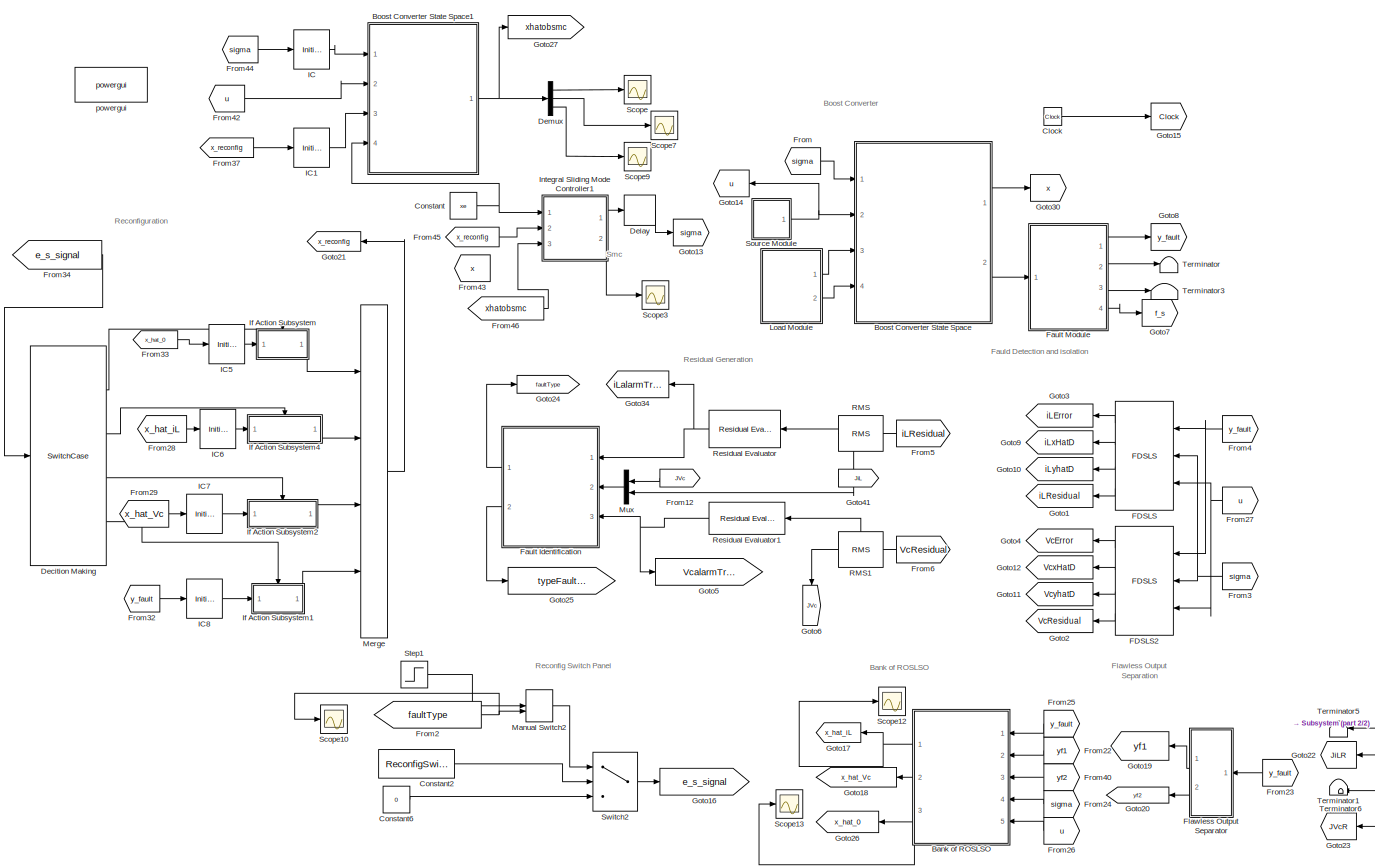
[diagram: root canvas - part 1/2, left side, full height]
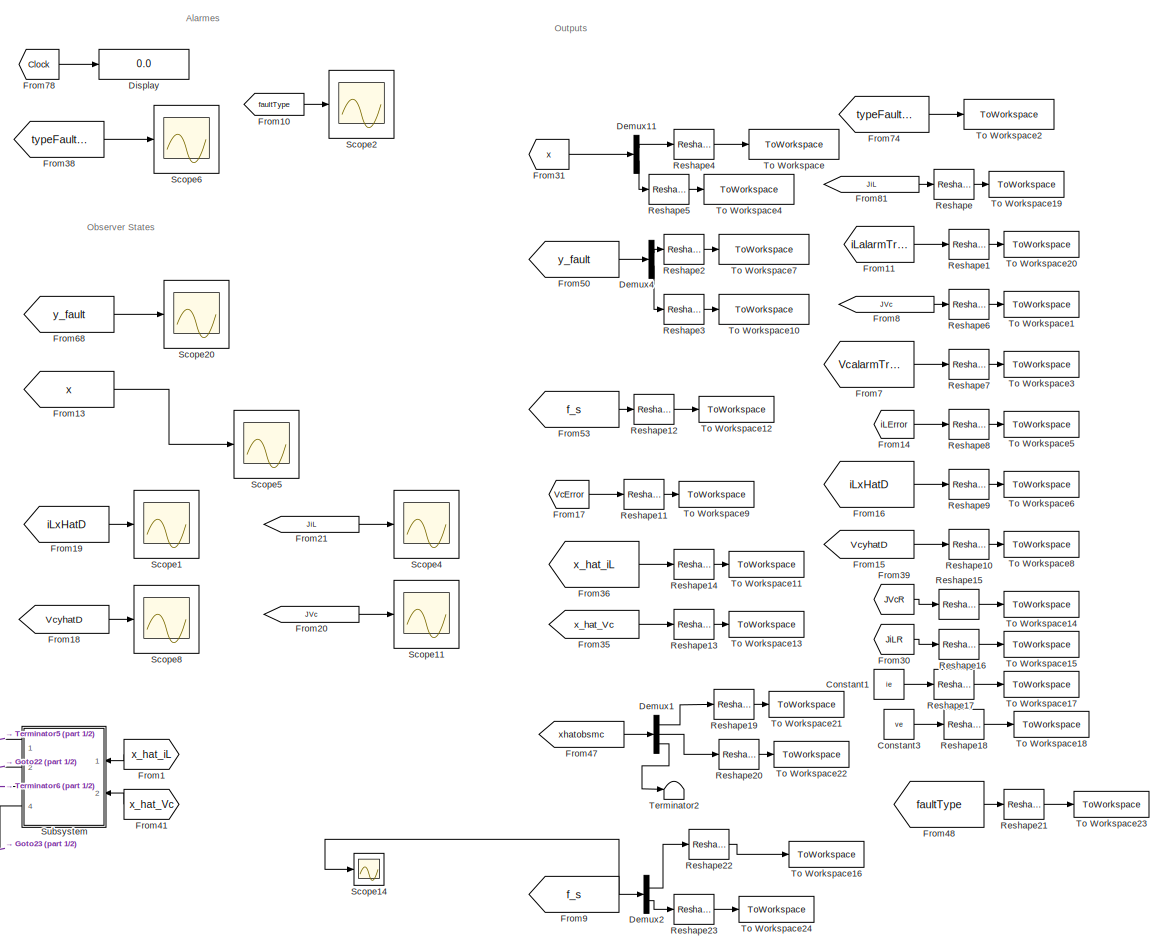
[diagram: root canvas - part 2/2, right side, full height]
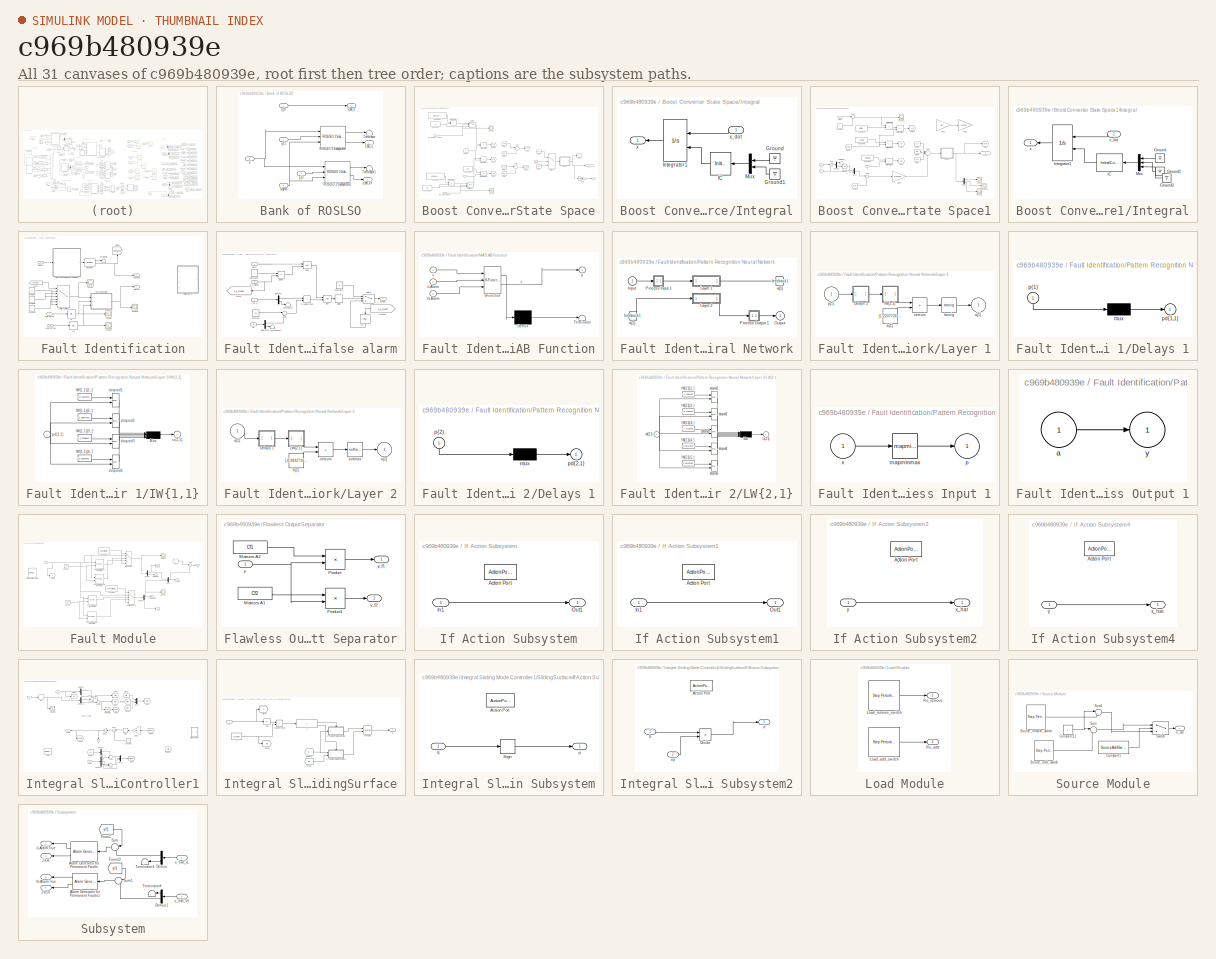
[diagram: thumbnail index - all 31 canvases of the model, root first then tree order]
MODEL slx_c969b480939e
KIND model
CONFIG AbsTol = auto
CONFIG EnableMultiTasking = on
CONFIG FixedStep = 0.0005
CONFIG InitFcn = kp=0.01;\nki=0.01;\n\nk=2;\nem=100000000;\nGE=1/em;\nGU=k*ki/GE;\nGCE=k*kp/GU;\n
CONFIG MaxStep = auto
CONFIG MinStep = auto
CONFIG RelTol = auto
CONFIG SampleTimeConstraint = Unconstrained
CONFIG Solver = ode45
CONFIG SolverName = ode45
CONFIG StartTime = 0.0
CONFIG StopTime = 1
WORKSPACE source: mxarray member
WORKSPACE time = 0.8
BLOCK [SubSystem] Bank of ROSLSO
  Ports = [5, 3]
  RequestExecContextInheritance = off
BLOCK [Reference] Bank of ROSLSO/ROSLSO 2 Subsystems  REF=PhdLibrary/ROSLSO
 2 Subsystems
  Ports = [3, 2]
  SourceBlock = PhdLibrary/ROSLSO\n 2 Subsystems
  SourceProductName = Phd Diego
  SourceType = ROSLSO
BLOCK [Reference] Bank of ROSLSO/ROSLSO 2 Subsystems1  REF=PhdLibrary/ROSLSO
 2 Subsystems
  Ports = [3, 2]
  SourceBlock = PhdLibrary/ROSLSO\n 2 Subsystems
  SourceProductName = Phd Diego
  SourceType = ROSLSO
BLOCK [Terminator] Bank of ROSLSO/Terminator
BLOCK [Terminator] Bank of ROSLSO/Terminator1
BLOCK [Inport] Bank of ROSLSO/sigma
  Port = 4
BLOCK [Inport] Bank of ROSLSO/u
  Port = 5
BLOCK [Outport] Bank of ROSLSO/x_hat_0
  Port = 3
BLOCK [Outport] Bank of ROSLSO/x_hat_Vc
  Port = 2
BLOCK [Outport] Bank of ROSLSO/x_hat_iL
BLOCK [Inport] Bank of ROSLSO/y_f0
BLOCK [Inport] Bank of ROSLSO/y_f1
  Port = 2
BLOCK [Inport] Bank of ROSLSO/y_f2
  Port = 3
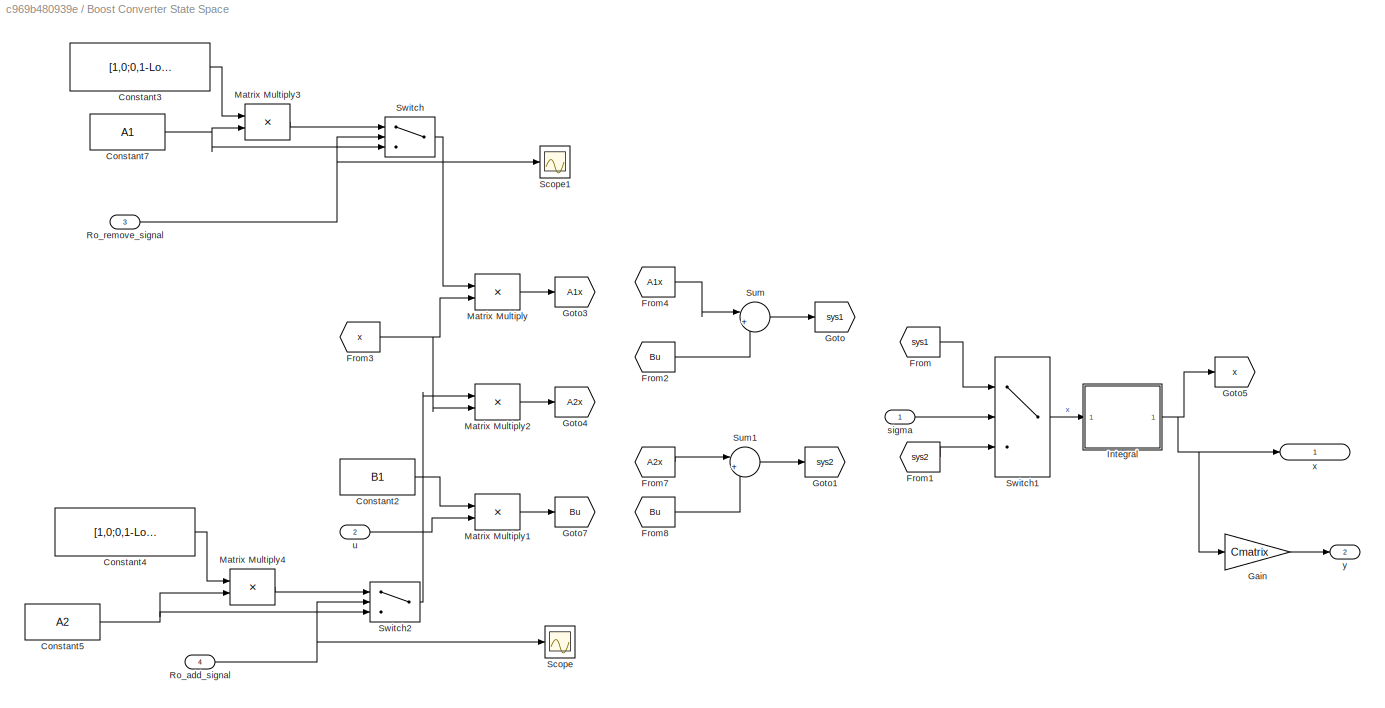
BLOCK [SubSystem] Boost Converter State Space
  AncestorBlock = PhdLibrary/Boost Converter \nState Space
  Ports = [4, 2]
  RequestExecContextInheritance = off
BLOCK [Constant] Boost Converter State Space/Constant2
  Value = B1
  VectorParams1D = off
BLOCK [Constant] Boost Converter State Space/Constant3
  Value = [1,0;0,1-LoadRemoveFactor]
  VectorParams1D = off
BLOCK [Constant] Boost Converter State Space/Constant4
  Value = [1,0;0,1-LoadRemoveFactor]
  VectorParams1D = off
BLOCK [Constant] Boost Converter State Space/Constant5
  Value = A2
  VectorParams1D = off
BLOCK [Constant] Boost Converter State Space/Constant7
  Value = A1
  VectorParams1D = off
BLOCK [From] Boost Converter State Space/From
  GotoTag = sys1
BLOCK [From] Boost Converter State Space/From1
  GotoTag = sys2
BLOCK [From] Boost Converter State Space/From2
  GotoTag = Bu
BLOCK [From] Boost Converter State Space/From3
  GotoTag = x
BLOCK [From] Boost Converter State Space/From4
  GotoTag = A1x
BLOCK [From] Boost Converter State Space/From7
  GotoTag = A2x
BLOCK [From] Boost Converter State Space/From8
  GotoTag = Bu
BLOCK [Gain] Boost Converter State Space/Gain
  Gain = Cmatrix
  Multiplication = Matrix(K*u)
BLOCK [Goto] Boost Converter State Space/Goto
  GotoTag = sys1
BLOCK [Goto] Boost Converter State Space/Goto1
  GotoTag = sys2
BLOCK [Goto] Boost Converter State Space/Goto3
  GotoTag = A1x
BLOCK [Goto] Boost Converter State Space/Goto4
  GotoTag = A2x
BLOCK [Goto] Boost Converter State Space/Goto5
  GotoTag = x
BLOCK [Goto] Boost Converter State Space/Goto7
  GotoTag = Bu
BLOCK [SubSystem] Boost Converter State Space/Integral
  Ports = [1, 1]
  RequestExecContextInheritance = off
BLOCK [Ground] Boost Converter State Space/Integral/Ground
  NameLocation = top
BLOCK [Ground] Boost Converter State Space/Integral/Ground1
  NameLocation = top
BLOCK [InitialCondition] Boost Converter State Space/Integral/IC
  NameLocation = top
  Value = [0;0]
BLOCK [Integrator] Boost Converter State Space/Integral/Integrator1
  InitialCondition = [-x_e; 0; 0]
  InitialConditionSource = external
  Ports = [2, 1]
BLOCK [Mux] Boost Converter State Space/Integral/Mux
  DisplayOption = bar
  Inputs = 2
  NameLocation = top
  Ports = [2, 1]
BLOCK [Outport] Boost Converter State Space/Integral/x
BLOCK [Inport] Boost Converter State Space/Integral/x_dot
BLOCK [Product] Boost Converter State Space/Matrix Multiply
  Multiplication = Matrix(*)
  Ports = [2, 1]
BLOCK [Product] Boost Converter State Space/Matrix Multiply1
  Multiplication = Matrix(*)
  Ports = [2, 1]
BLOCK [Product] Boost Converter State Space/Matrix Multiply2
  Multiplication = Matrix(*)
  Ports = [2, 1]
BLOCK [Product] Boost Converter State Space/Matrix Multiply3
  Multiplication = Matrix(*)
  Ports = [2, 1]
BLOCK [Product] Boost Converter State Space/Matrix Multiply4
  Multiplication = Matrix(*)
  Ports = [2, 1]
BLOCK [Inport] Boost Converter State Space/Ro_add_signal
  Port = 4
BLOCK [Inport] Boost Converter State Space/Ro_remove_signal
  Port = 3
BLOCK [Scope] Boost Converter State Space/Scope
  Floating = off
  NumInputPorts = 1
  Ports = [1]
  ScopeSpecificationString = Simulink.scopes.TimeScopeBlockCfg('CurrentConfiguration', extmgr.ConfigurationSet(extmgr.Configuration('Core','General UI',true),extmgr.Configuration('Core','Source UI',true),extmgr.Configuration('Sources','WiredSimulink',true,'DataLoggingVariableName','ScopeData12'),extmgr.Configuration('Visuals','Time Domain',true,'SerializedDisplays',{struct('MinYLimReal','-1.00000','MaxYLimReal','1.00000','YLa...<+1373ch>
BLOCK [Scope] Boost Converter State Space/Scope1
  Floating = off
  NumInputPorts = 1
  Ports = [1]
  ScopeSpecificationString = Simulink.scopes.TimeScopeBlockCfg('CurrentConfiguration', extmgr.ConfigurationSet(extmgr.Configuration('Core','General UI',true),extmgr.Configuration('Core','Source UI',true),extmgr.Configuration('Sources','WiredSimulink',true,'DataLoggingVariableName','ScopeData13'),extmgr.Configuration('Visuals','Time Domain',true,'SerializedDisplays',{struct('MinYLimReal','-1.00000','MaxYLimReal','1.00000','YLa...<+1376ch>
BLOCK [Sum] Boost Converter State Space/Sum
  Inputs = |++
  Ports = [2, 1]
BLOCK [Sum] Boost Converter State Space/Sum1
  Inputs = |++
  Ports = [2, 1]
BLOCK [Switch] Boost Converter State Space/Switch
  Criteria = u2 > Threshold
  InputSameDT = off
  SaturateOnIntegerOverflow = off
BLOCK [Switch] Boost Converter State Space/Switch1
  Criteria = u2 ~= 0
  InputSameDT = off
  SaturateOnIntegerOverflow = off
BLOCK [Switch] Boost Converter State Space/Switch2
  Criteria = u2 > Threshold
  InputSameDT = off
  SaturateOnIntegerOverflow = off
BLOCK [Inport] Boost Converter State Space/sigma
BLOCK [Inport] Boost Converter State Space/u
  Port = 2
BLOCK [Outport] Boost Converter State Space/x
BLOCK [Outport] Boost Converter State Space/y
  Port = 2
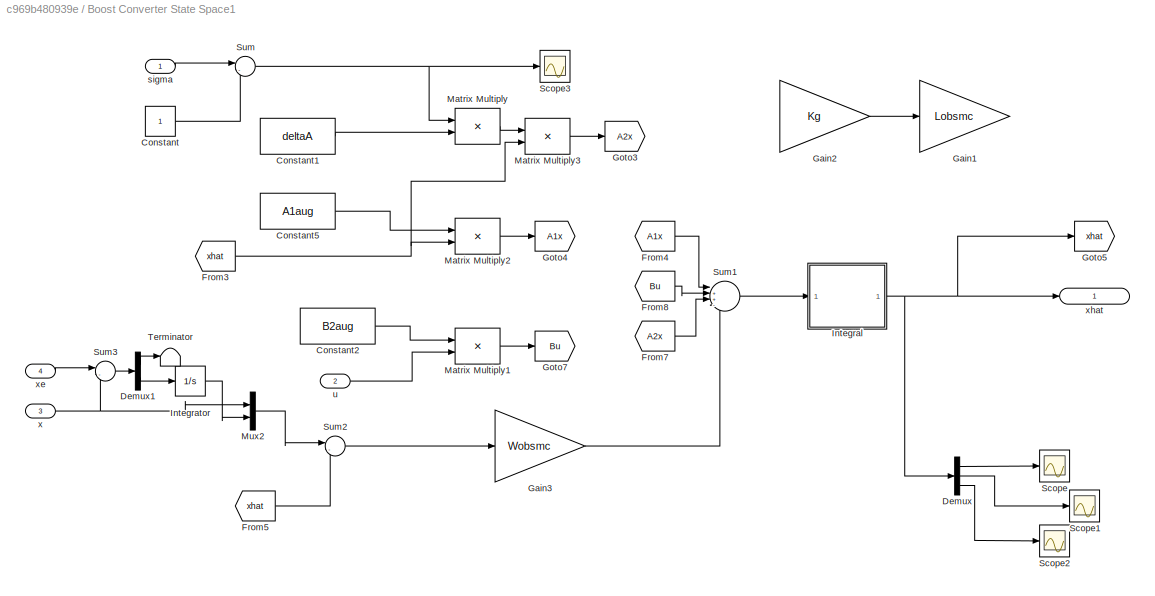
BLOCK [SubSystem] Boost Converter State Space1
  Ports = [4, 1]
  RequestExecContextInheritance = off
BLOCK [Constant] Boost Converter State Space1/Constant
BLOCK [Constant] Boost Converter State Space1/Constant1
  Value = deltaA
  VectorParams1D = off
BLOCK [Constant] Boost Converter State Space1/Constant2
  Value = B2aug
  VectorParams1D = off
BLOCK [Constant] Boost Converter State Space1/Constant5
  Value = A1aug
  VectorParams1D = off
BLOCK [Demux] Boost Converter State Space1/Demux
  Outputs = 3
  Ports = [1, 3]
BLOCK [Demux] Boost Converter State Space1/Demux1
  Outputs = 2
  Ports = [1, 2]
BLOCK [From] Boost Converter State Space1/From3
  GotoTag = xhat
BLOCK [From] Boost Converter State Space1/From4
  GotoTag = A1x
BLOCK [From] Boost Converter State Space1/From5
  GotoTag = xhat
BLOCK [From] Boost Converter State Space1/From7
  GotoTag = A2x
BLOCK [From] Boost Converter State Space1/From8
  GotoTag = Bu
BLOCK [Gain] Boost Converter State Space1/Gain1
  Commented = on
  Gain = Lobsmc
  Multiplication = Matrix(K*u)
  NameLocation = left
BLOCK [Gain] Boost Converter State Space1/Gain2
  Commented = on
  Gain = Kg
  Multiplication = Matrix(K*u)
BLOCK [Gain] Boost Converter State Space1/Gain3
  Gain = Wobsmc
  Multiplication = Matrix(K*u)
BLOCK [Goto] Boost Converter State Space1/Goto3
  GotoTag = A2x
BLOCK [Goto] Boost Converter State Space1/Goto4
  GotoTag = A1x
BLOCK [Goto] Boost Converter State Space1/Goto5
  GotoTag = xhat
BLOCK [Goto] Boost Converter State Space1/Goto7
  GotoTag = Bu
BLOCK [SubSystem] Boost Converter State Space1/Integral
  Ports = [1, 1]
  RequestExecContextInheritance = off
BLOCK [Ground] Boost Converter State Space1/Integral/Ground
  NameLocation = top
BLOCK [Ground] Boost Converter State Space1/Integral/Ground1
  NameLocation = top
BLOCK [Ground] Boost Converter State Space1/Integral/Ground2
  NameLocation = top
BLOCK [InitialCondition] Boost Converter State Space1/Integral/IC
  NameLocation = top
  Value = [0;0;0]
BLOCK [Integrator] Boost Converter State Space1/Integral/Integrator1
  InitialCondition = [-x_e; 0; 0]
  InitialConditionSource = external
  Ports = [2, 1]
BLOCK [Mux] Boost Converter State Space1/Integral/Mux
  DisplayOption = bar
  Inputs = 3
  NameLocation = top
  Ports = [3, 1]
BLOCK [Outport] Boost Converter State Space1/Integral/x
BLOCK [Inport] Boost Converter State Space1/Integral/x_dot
BLOCK [Integrator] Boost Converter State Space1/Integrator
  Ports = [1, 1]
BLOCK [Product] Boost Converter State Space1/Matrix Multiply
  Ports = [2, 1]
BLOCK [Product] Boost Converter State Space1/Matrix Multiply1
  Multiplication = Matrix(*)
  Ports = [2, 1]
BLOCK [Product] Boost Converter State Space1/Matrix Multiply2
  Multiplication = Matrix(*)
  Ports = [2, 1]
BLOCK [Product] Boost Converter State Space1/Matrix Multiply3
  Multiplication = Matrix(*)
  Ports = [2, 1]
BLOCK [Mux] Boost Converter State Space1/Mux2
  DisplayOption = bar
  Inputs = 2
  Ports = [2, 1]
BLOCK [Scope] Boost Converter State Space1/Scope
  Floating = off
  NumInputPorts = 1
  Ports = [1]
  ScopeSpecificationString = Simulink.scopes.TimeScopeBlockCfg('CurrentConfiguration', extmgr.ConfigurationSet(extmgr.Configuration('Core','General UI',true),extmgr.Configuration('Core','Source UI',true),extmgr.Configuration('Sources','WiredSimulink',true,'DataLoggingVariableName','ScopeData4'),extmgr.Configuration('Visuals','Time Domain',true,'SerializedDisplays',{struct('MinYLimReal','-25.90792','MaxYLimReal','26.26114','YL...<+1420ch>
BLOCK [Scope] Boost Converter State Space1/Scope1
  Floating = off
  NumInputPorts = 1
  Ports = [1]
  ScopeSpecificationString = Simulink.scopes.TimeScopeBlockCfg('CurrentConfiguration', extmgr.ConfigurationSet(extmgr.Configuration('Core','General UI',true),extmgr.Configuration('Core','Source UI',true),extmgr.Configuration('Sources','WiredSimulink',true,'DataLoggingVariableName','ScopeData5'),extmgr.Configuration('Visuals','Time Domain',true,'SerializedDisplays',{struct('MinYLimReal','-48.08135','MaxYLimReal','432.67467','Y...<+1447ch>
BLOCK [Scope] Boost Converter State Space1/Scope2
  Floating = off
  NumInputPorts = 1
  Ports = [1]
  ScopeSpecificationString = Simulink.scopes.TimeScopeBlockCfg('CurrentConfiguration', extmgr.ConfigurationSet(extmgr.Configuration('Core','General UI',true),extmgr.Configuration('Core','Source UI',true),extmgr.Configuration('Sources','WiredSimulink',true,'DataLoggingVariableName','ScopeData6'),extmgr.Configuration('Visuals','Time Domain',true,'SerializedDisplays',{struct('MinYLimReal','-2116.13202','MaxYLimReal','235.12578',...<+1434ch>
BLOCK [Scope] Boost Converter State Space1/Scope3
  Floating = off
  NumInputPorts = 1
  Ports = [1]
  ScopeSpecificationString = Simulink.scopes.TimeScopeBlockCfg('CurrentConfiguration', extmgr.ConfigurationSet(extmgr.Configuration('Core','General UI',true),extmgr.Configuration('Core','Source UI',true),extmgr.Configuration('Sources','WiredSimulink',true,'DataLoggingVariableName','ScopeData11'),extmgr.Configuration('Visuals','Time Domain',true,'SerializedDisplays',{struct('MinYLimReal','-0.125','MaxYLimReal','1.125','YLabelR...<+1351ch>
BLOCK [Sum] Boost Converter State Space1/Sum
  Inputs = |-+
  Ports = [2, 1]
BLOCK [Sum] Boost Converter State Space1/Sum1
  Inputs = |++--
  Ports = [4, 1]
BLOCK [Sum] Boost Converter State Space1/Sum2
  Inputs = |-+
  Ports = [2, 1]
BLOCK [Sum] Boost Converter State Space1/Sum3
  Inputs = |-+
  Ports = [2, 1]
BLOCK [Terminator] Boost Converter State Space1/Terminator
BLOCK [Inport] Boost Converter State Space1/sigma
BLOCK [Inport] Boost Converter State Space1/u
  Port = 2
BLOCK [Inport] Boost Converter State Space1/x
  Port = 3
BLOCK [Inport] Boost Converter State Space1/xe
  Port = 4
BLOCK [Outport] Boost Converter State Space1/xhat
BLOCK [Clock] Clock
BLOCK [Constant] Constant
  Value = xe
  VectorParams1D = off
BLOCK [Constant] Constant1
  Value = ie
  VectorParams1D = off
BLOCK [Constant] Constant2
  Value = ReconfigSwitch
BLOCK [Constant] Constant3
  Value = ve
  VectorParams1D = off
BLOCK [Constant] Constant6
  Value = 0
BLOCK [SwitchCase] Decition Making
  CaseConditions = {[0],[1],[2]}
  Ports = [1, 4]
BLOCK [Delay] Delay
  DelayLength = 1
  InputPortMap = u0
  Ports = [1, 1]
BLOCK [Demux] Demux
  Outputs = 3
  Ports = [1, 3]
BLOCK [Demux] Demux1
  Outputs = 3
  Ports = [1, 3]
BLOCK [Demux] Demux11
  Outputs = 2
  Ports = [1, 2]
BLOCK [Demux] Demux2
  Outputs = 2
  Ports = [1, 2]
BLOCK [Demux] Demux4
  Outputs = 2
  Ports = [1, 2]
BLOCK [Display] Display
  Decimation = 1
  Ports = [1]
BLOCK [Reference] FDSLS  REF=PhdLibrary/FDSLS
  Ports = [3, 4]
  SourceBlock = PhdLibrary/FDSLS
  SourceProductName = Phd Diego
  SourceType = Sliding mode observer for Switched linear affine systems
BLOCK [Reference] FDSLS2  REF=PhdLibrary/FDSLS
  NameLocation = top
  Ports = [3, 4]
  SourceBlock = PhdLibrary/FDSLS
  SourceProductName = Phd Diego
  SourceType = Sliding mode observer for Switched linear affine systems
BLOCK [SubSystem] Fault Identification
  NameLocation = top
  Ports = [3, 2]
  RequestExecContextInheritance = off
BLOCK [SubSystem] Fault Identification/Anti false alarm
  Commented = on
  Ports = [4, 1]
  RequestExecContextInheritance = off
BLOCK [Logic] Fault Identification/Anti false alarm/AND
  AllPortsSameDT = off
  IconShape = distinctive
  OutDataTypeStr = boolean
  Ports = [2, 1]
BLOCK [Logic] Fault Identification/Anti false alarm/AND1
  AllPortsSameDT = off
  IconShape = distinctive
  OutDataTypeStr = boolean
  Ports = [2, 1]
BLOCK [Constant] Fault Identification/Anti false alarm/Constant
  Value = 50
BLOCK [Constant] Fault Identification/Anti false alarm/Constant7
  Value = 2
BLOCK [Constant] Fault Identification/Anti false alarm/Constant8
BLOCK [Delay] Fault Identification/Anti false alarm/Delay
  DelayLength = 1
  InputPortMap = u0
  Ports = [1, 1]
BLOCK [Demux] Fault Identification/Anti false alarm/Demux10
  Outputs = 2
  Ports = [1, 2]
BLOCK [Demux] Fault Identification/Anti false alarm/Demux3
  Outputs = 2
  Ports = [1, 2]
BLOCK [RelationalOperator] Fault Identification/Anti false alarm/Equal
  InputSameDT = off
  Operator = ==
  OutDataTypeStr = boolean
  Ports = [2, 1]
  RndMeth = Simplest
BLOCK [From] Fault Identification/Anti false alarm/From41
  GotoTag = e_s_signal
  NameLocation = top
BLOCK [Goto] Fault Identification/Anti false alarm/Goto
  GotoTag = e_s_signal
BLOCK [RelationalOperator] Fault Identification/Anti false alarm/GreaterThan
  InputSameDT = off
  Operator = >
  OutDataTypeStr = boolean
  Ports = [2, 1]
  RndMeth = Simplest
BLOCK [InitialCondition] Fault Identification/Anti false alarm/IC4
  NameLocation = left
BLOCK [Sum] Fault Identification/Anti false alarm/Sum
  Inputs = |++
  Ports = [2, 1]
BLOCK [Switch] Fault Identification/Anti false alarm/Switch
  InputSameDT = off
  SaturateOnIntegerOverflow = off
BLOCK [Terminator] Fault Identification/Anti false alarm/Terminator
BLOCK [Terminator] Fault Identification/Anti false alarm/Terminator1
BLOCK [Inport] Fault Identification/Anti false alarm/alarm
BLOCK [Inport] Fault Identification/Anti false alarm/e_s_signal
  Port = 4
BLOCK [Outport] Fault Identification/Anti false alarm/enable
BLOCK [Inport] Fault Identification/Anti false alarm/x_hat_iL
  Port = 2
BLOCK [Inport] Fault Identification/Anti false alarm/xe
  Port = 3
BLOCK [Constant] Fault Identification/Constant
  Value = 0
BLOCK [Constant] Fault Identification/Constant1
BLOCK [Constant] Fault Identification/Constant2
  Value = 2
BLOCK [From] Fault Identification/From
  GotoTag = nnoutpu
BLOCK [Goto] Fault Identification/Goto11
  GotoTag = nnoutpu
  NameLocation = right
BLOCK [InitialCondition] Fault Identification/IC
  Value = 0
BLOCK [InitialCondition] Fault Identification/IC1
  Value = 0
BLOCK [SubSystem] Fault Identification/MATLAB Function
  ErrorFcn = Stateflow.Translate.translate
  PermitHierarchicalResolution = ExplicitOnly
  Ports = [3, 1]
  RequestExecContextInheritance = off
  SFBlockType = MATLAB Function
  TreatAsAtomicUnit = on
BLOCK [Demux] Fault Identification/MATLAB Function/ Demux 
  Outputs = 1
  Ports = [1, 1]
BLOCK [S-Function] Fault Identification/MATLAB Function/ SFunction 
  EnableBusSupport = on
  FunctionName = sf_sfun
  PortCounts = [3 2]
  Ports = [3, 2]
  SFcnIsStateOwnerBlock = off
  SFunctionDeploymentMode = off
  Tag = Stateflow S-Function 2
BLOCK [Terminator] Fault Identification/MATLAB Function/ Terminator 
BLOCK [Inport] Fault Identification/MATLAB Function/VcAlarm
  Port = 3
BLOCK [Inport] Fault Identification/MATLAB Function/iLAlarm
  Port = 2
BLOCK [Inport] Fault Identification/MATLAB Function/u
BLOCK [Outport] Fault Identification/MATLAB Function/y
BLOCK [Reference] Fault Identification/Maximum  REF=dspstat3/Maximum
  Ports = [1, 2]
  SourceBlock = dspstat3/Maximum
  SourceProductBaseCode = DS
  SourceType = Maximum
  UserDataPersistent = on
BLOCK [MultiPortSwitch] Fault Identification/Multiport Switch
  DataPortForDefault = Additional data port
  InputSameDT = off
  Inputs = 5
  Ports = [7, 1]
  SaturateOnIntegerOverflow = off
BLOCK [Inport] Fault Identification/Netinput
  Port = 2
BLOCK [SubSystem] Fault Identification/Pattern Recognition Neural Network
  Ports = [1, 1]
  RequestExecContextInheritance = off
BLOCK [From] Fault Identification/Pattern Recognition Neural Network/ a{1} 
  GotoTag = feedback1
BLOCK [Inport] Fault Identification/Pattern Recognition Neural Network/Input
  PortDimensions = 2
BLOCK [SubSystem] Fault Identification/Pattern Recognition Neural Network/Layer 1
  Ports = [1, 1]
  RequestExecContextInheritance = off
BLOCK [SubSystem] Fault Identification/Pattern Recognition Neural Network/Layer 1/Delays 1
  Ports = [1, 1]
  RequestExecContextInheritance = off
BLOCK [Mux] Fault Identification/Pattern Recognition Neural Network/Layer 1/Delays 1/mux
  Inputs = 1
  Ports = [1, 1]
BLOCK [Outport] Fault Identification/Pattern Recognition Neural Network/Layer 1/Delays 1/pd{1,1}
BLOCK [Inport] Fault Identification/Pattern Recognition Neural Network/Layer 1/Delays 1/p{1}
  NameLocation = left
  PortDimensions = 2
BLOCK [SubSystem] Fault Identification/Pattern Recognition Neural Network/Layer 1/IW{1,1}
  Ports = [1, 1]
  RequestExecContextInheritance = off
BLOCK [Constant] Fault Identification/Pattern Recognition Neural Network/Layer 1/IW{1,1}/IW{1,1}(1,:)'
  Value = [11.63643705893124291606000042520463466644287109375;-10.3200076016572115378266971674747765064239501953125]
BLOCK [Constant] Fault Identification/Pattern Recognition Neural Network/Layer 1/IW{1,1}/IW{1,1}(2,:)'
  Value = [1.898779783991595859760082021239213645458221435546875;1.717719332240211116413775016553699970245361328125]
BLOCK [Constant] Fault Identification/Pattern Recognition Neural Network/Layer 1/IW{1,1}/IW{1,1}(3,:)'
  Value = [-5.7608601368840606227195166866295039653778076171875;-2.236336405391225579109004684141837060451507568359375]
BLOCK [Constant] Fault Identification/Pattern Recognition Neural Network/Layer 1/IW{1,1}/IW{1,1}(4,:)'
  Value = [5.18824041979811934055533129139803349971771240234375;9.184501415403925506097948527894914150238037109375]
BLOCK [Mux] Fault Identification/Pattern Recognition Neural Network/Layer 1/IW{1,1}/Mux
  Ports = [4, 1]
BLOCK [Reference] Fault Identification/Pattern Recognition Neural Network/Layer 1/IW{1,1}/dotprod1  REF=neural/Weight Functions/dotprod
  Ports = [2, 1]
  SourceBlock = neural/Weight Functions/dotprod
  SourceProductBaseCode = NN
  SourceType = DOTPROD
BLOCK [Reference] Fault Identification/Pattern Recognition Neural Network/Layer 1/IW{1,1}/dotprod2  REF=neural/Weight Functions/dotprod
  Ports = [2, 1]
  SourceBlock = neural/Weight Functions/dotprod
  SourceProductBaseCode = NN
  SourceType = DOTPROD
BLOCK [Reference] Fault Identification/Pattern Recognition Neural Network/Layer 1/IW{1,1}/dotprod3  REF=neural/Weight Functions/dotprod
  Ports = [2, 1]
  SourceBlock = neural/Weight Functions/dotprod
  SourceProductBaseCode = NN
  SourceType = DOTPROD
BLOCK [Reference] Fault Identification/Pattern Recognition Neural Network/Layer 1/IW{1,1}/dotprod4  REF=neural/Weight Functions/dotprod
  Ports = [2, 1]
  SourceBlock = neural/Weight Functions/dotprod
  SourceProductBaseCode = NN
  SourceType = DOTPROD
BLOCK [Outport] Fault Identification/Pattern Recognition Neural Network/Layer 1/IW{1,1}/iz{1,1}
BLOCK [Inport] Fault Identification/Pattern Recognition Neural Network/Layer 1/IW{1,1}/pd{1,1}
  PortDimensions = 2
BLOCK [Outport] Fault Identification/Pattern Recognition Neural Network/Layer 1/a{1}
  InitialOutput = [0;0;0;0]
BLOCK [Constant] Fault Identification/Pattern Recognition Neural Network/Layer 1/b{1}
  Value = [1.22077261248049051545194743084721267223358154296875;-0.1998329780659983956336844812540221028029918670654296875;-7.21506241785457103077305873739533126354217529296875;14.0631283131668478603160110651515424251556396484375]
BLOCK [Sum] Fault Identification/Pattern Recognition Neural Network/Layer 1/netsum
  IconShape = rectangular
  InputSameDT = on
  Inputs = 2
  OutDataTypeStr = Inherit: Same as first input
  Ports = [2, 1]
  SaturateOnIntegerOverflow = on
BLOCK [Inport] Fault Identification/Pattern Recognition Neural Network/Layer 1/p{1}
  PortDimensions = 2
BLOCK [Reference] Fault Identification/Pattern Recognition Neural Network/Layer 1/tansig  REF=neural/Transfer Functions/tansig
  Ports = [1, 1]
  SourceBlock = neural/Transfer Functions/tansig
  SourceProductBaseCode = NN
  SourceType = TANSIG
BLOCK [SubSystem] Fault Identification/Pattern Recognition Neural Network/Layer 2
  Ports = [1, 1]
  RequestExecContextInheritance = off
BLOCK [SubSystem] Fault Identification/Pattern Recognition Neural Network/Layer 2/Delays 1
  Ports = [1, 1]
  RequestExecContextInheritance = off
BLOCK [Mux] Fault Identification/Pattern Recognition Neural Network/Layer 2/Delays 1/mux
  Inputs = 1
  Ports = [1, 1]
BLOCK [Outport] Fault Identification/Pattern Recognition Neural Network/Layer 2/Delays 1/pd{2,1}
BLOCK [Inport] Fault Identification/Pattern Recognition Neural Network/Layer 2/Delays 1/p{2}
  NameLocation = left
  PortDimensions = 4
BLOCK [SubSystem] Fault Identification/Pattern Recognition Neural Network/Layer 2/LW{2,1}
  Ports = [1, 1]
  RequestExecContextInheritance = off
BLOCK [Constant] Fault Identification/Pattern Recognition Neural Network/Layer 2/LW{2,1}/IW{2,1}(1,:)'
  Value = [-0.758816881398248543888485073694027960300445556640625;0.424417754570571237326959135316428728401660919189453125;11.5760018766566670223028268082998692989349365234375;-17.16434413888124055347361718304455280303955078125]
BLOCK [Constant] Fault Identification/Pattern Recognition Neural Network/Layer 2/LW{2,1}/IW{2,1}(2,:)'
  Value = [-9.1085813763225740302686972427181899547576904296875;-1.3739740339236121702271020694752223789691925048828125;1.9043977411439707569940082976245321333408355712890625;2.754022797874950523322468143305741250514984130859375]
BLOCK [Constant] Fault Identification/Pattern Recognition Neural Network/Layer 2/LW{2,1}/IW{2,1}(3,:)'
  Value = [-7.41263022830842732702194552985019981861114501953125;-0.8067853430527545111061726856860332190990447998046875;-3.06564437953813495596477878279983997344970703125;4.64642738772163266247616775217466056346893310546875]
BLOCK [Constant] Fault Identification/Pattern Recognition Neural Network/Layer 2/LW{2,1}/IW{2,1}(4,:)'
  Value = [8.2671583198201261666326900012791156768798828125;-2.5154465447472507122483875718899071216583251953125;0.7215212623575222306016030415776185691356658935546875;2.56187604141184888106863581924699246883392333984375]
BLOCK [Constant] Fault Identification/Pattern Recognition Neural Network/Layer 2/LW{2,1}/IW{2,1}(5,:)'
  Value = [8.994520026627821351894453982822597026824951171875;0.6440166326554896958356266623013652861118316650390625;-9.832586217086056734615340246818959712982177734375;5.74314665310695460220813401974737644195556640625]
BLOCK [Mux] Fault Identification/Pattern Recognition Neural Network/Layer 2/LW{2,1}/Mux
  Inputs = 5
  Ports = [5, 1]
BLOCK [Inport] Fault Identification/Pattern Recognition Neural Network/Layer 2/LW{2,1}/ad{2,1}
  PortDimensions = 4
BLOCK [Reference] Fault Identification/Pattern Recognition Neural Network/Layer 2/LW{2,1}/dotprod1  REF=neural/Weight Functions/dotprod
  Ports = [2, 1]
  SourceBlock = neural/Weight Functions/dotprod
  SourceProductBaseCode = NN
  SourceType = DOTPROD
BLOCK [Reference] Fault Identification/Pattern Recognition Neural Network/Layer 2/LW{2,1}/dotprod2  REF=neural/Weight Functions/dotprod
  Ports = [2, 1]
  SourceBlock = neural/Weight Functions/dotprod
  SourceProductBaseCode = NN
  SourceType = DOTPROD
BLOCK [Reference] Fault Identification/Pattern Recognition Neural Network/Layer 2/LW{2,1}/dotprod3  REF=neural/Weight Functions/dotprod
  Ports = [2, 1]
  SourceBlock = neural/Weight Functions/dotprod
  SourceProductBaseCode = NN
  SourceType = DOTPROD
BLOCK [Reference] Fault Identification/Pattern Recognition Neural Network/Layer 2/LW{2,1}/dotprod4  REF=neural/Weight Functions/dotprod
  Ports = [2, 1]
  SourceBlock = neural/Weight Functions/dotprod
  SourceProductBaseCode = NN
  SourceType = DOTPROD
BLOCK [Reference] Fault Identification/Pattern Recognition Neural Network/Layer 2/LW{2,1}/dotprod5  REF=neural/Weight Functions/dotprod
  Ports = [2, 1]
  SourceBlock = neural/Weight Functions/dotprod
  SourceProductBaseCode = NN
  SourceType = DOTPROD
BLOCK [Outport] Fault Identification/Pattern Recognition Neural Network/Layer 2/LW{2,1}/lz{2,1}
BLOCK [Inport] Fault Identification/Pattern Recognition Neural Network/Layer 2/a{1} 
  PortDimensions = 4
BLOCK [Outport] Fault Identification/Pattern Recognition Neural Network/Layer 2/a{2}
  InitialOutput = [0;0;0;0;0]
BLOCK [Constant] Fault Identification/Pattern Recognition Neural Network/Layer 2/b{2}
  Value = [-0.28327165505055251770727409166283905506134033203125;-0.418393772523750373526496559861698187887668609619140625;0.2351244550115182130323177034370019100606441497802734375;1.90710436787325487983935090596787631511688232421875;-1.3761924879736036064770132725243456661701202392578125]
BLOCK [Sum] Fault Identification/Pattern Recognition Neural Network/Layer 2/netsum
  IconShape = rectangular
  InputSameDT = on
  Inputs = 2
  OutDataTypeStr = Inherit: Same as first input
  Ports = [2, 1]
  SaturateOnIntegerOverflow = on
BLOCK [Reference] Fault Identification/Pattern Recognition Neural Network/Layer 2/softmax  REF=neural/Transfer Functions/softmax
  Ports = [1, 1]
  SourceBlock = neural/Transfer Functions/softmax
  SourceProductBaseCode = NN
  SourceType = SOFTMAX
BLOCK [Outport] Fault Identification/Pattern Recognition Neural Network/Output
  InitialOutput = [0;0;0;0;0]
BLOCK [SubSystem] Fault Identification/Pattern Recognition Neural Network/Process Input 1
  Ports = [1, 1]
  RequestExecContextInheritance = off
BLOCK [Reference] Fault Identification/Pattern Recognition Neural Network/Process Input 1/mapminmax  REF=neural/Processing Functions/mapminmax
  Ports = [1, 1]
  SourceBlock = neural/Processing Functions/mapminmax
  SourceProductBaseCode = NN
  SourceType = MAPMINMAX Preprocess
BLOCK [Outport] Fault Identification/Pattern Recognition Neural Network/Process Input 1/p
  PortDimensions = 2
BLOCK [Inport] Fault Identification/Pattern Recognition Neural Network/Process Input 1/x
  PortDimensions = 2
BLOCK [SubSystem] Fault Identification/Pattern Recognition Neural Network/Process Output 1
  Ports = [1, 1]
  RequestExecContextInheritance = off
BLOCK [Inport] Fault Identification/Pattern Recognition Neural Network/Process Output 1/a
  PortDimensions = 5
BLOCK [Outport] Fault Identification/Pattern Recognition Neural Network/Process Output 1/y
  PortDimensions = 5
BLOCK [Goto] Fault Identification/Pattern Recognition Neural Network/a{1}
  GotoTag = feedback1
BLOCK [Scope] Fault Identification/Scope
  Floating = off
  NumInputPorts = 1
  Ports = [1]
  ScopeSpecificationString = Simulink.scopes.TimeScopeBlockCfg('CurrentConfiguration', extmgr.ConfigurationSet(extmgr.Configuration('Core','General UI',true),extmgr.Configuration('Core','Source UI',true),extmgr.Configuration('Sources','WiredSimulink',true,'DataLoggingVariableName','ScopeData2'),extmgr.Configuration('Visuals','Time Domain',true,'SerializedDisplays',{struct('MinYLimReal','-0.125','MaxYLimReal','1.125','YLabelRe...<+1393ch>
BLOCK [Scope] Fault Identification/Scope1
  Floating = off
  NumInputPorts = 1
  Ports = [1]
  ScopeSpecificationString = Simulink.scopes.TimeScopeBlockCfg('CurrentConfiguration', extmgr.ConfigurationSet(extmgr.Configuration('Core','General UI',true),extmgr.Configuration('Core','Source UI',true),extmgr.Configuration('Sources','WiredSimulink',true,'DataLoggingVariableName','ScopeData3'),extmgr.Configuration('Visuals','Time Domain',true,'SerializedDisplays',{struct('MinYLimReal','-1.00000','MaxYLimReal','1.00000','YLab...<+1406ch>
BLOCK [Scope] Fault Identification/Scope2
  Floating = off
  NumInputPorts = 1
  Ports = [1]
  ScopeSpecificationString = Simulink.scopes.TimeScopeBlockCfg('CurrentConfiguration', extmgr.ConfigurationSet(extmgr.Configuration('Core','General UI',true),extmgr.Configuration('Core','Source UI',true),extmgr.Configuration('Sources','WiredSimulink',true,'DataLoggingVariableName','ScopeData4'),extmgr.Configuration('Visuals','Time Domain',true,'SerializedDisplays',{struct('MinYLimReal','-0.125','MaxYLimReal','1.125','YLabelRe...<+1362ch>
BLOCK [Scope] Fault Identification/Scope3
  Floating = off
  NumInputPorts = 1
  Ports = [1]
  ScopeSpecificationString = Simulink.scopes.TimeScopeBlockCfg('CurrentConfiguration', extmgr.ConfigurationSet(extmgr.Configuration('Core','General UI',true),extmgr.Configuration('Core','Source UI',true),extmgr.Configuration('Sources','WiredSimulink',true,'DataLoggingVariableName','ScopeData5'),extmgr.Configuration('Visuals','Time Domain',true,'SerializedDisplays',{struct('MinYLimReal','-0.12329','MaxYLimReal','1.07206','YLab...<+1419ch>
BLOCK [Terminator] Fault Identification/Terminator
BLOCK [Inport] Fault Identification/VcalarmTrue1
  Port = 3
BLOCK [Outport] Fault Identification/faulType
BLOCK [Inport] Fault Identification/iLalarmTrue
BLOCK [Outport] Fault Identification/nnoutput
  Port = 2
BLOCK [SubSystem] Fault Module
  Ports = [1, 4]
  RequestExecContextInheritance = off
BLOCK [Constant] Fault Module/Constant
  Value = iLFaultSwitch
BLOCK [Constant] Fault Module/Constant1
  Value = VcFaultSwitch
BLOCK [Demux] Fault Module/Demux
  Outputs = 2
  Ports = [1, 2]
BLOCK [Demux] Fault Module/Demux1
  Outputs = 2
  Ports = [1, 2]
BLOCK [From] Fault Module/From
  GotoTag = y
BLOCK [Goto] Fault Module/Goto
  GotoTag = y
BLOCK [Reference] Fault Module/Loss of sensor Generator  REF=PhdLibrary/Loss of sensor
Generator
  Ports = [2, 1]
  SourceBlock = PhdLibrary/Loss of sensor\nGenerator
  SourceProductName = Phd Diego
  SourceType = Loss of sensor signal fault generator
BLOCK [Reference] Fault Module/Loss of sensor Generator1  REF=PhdLibrary/Loss of sensor
Generator
  Ports = [2, 1]
  SourceBlock = PhdLibrary/Loss of sensor\nGenerator
  SourceProductName = Phd Diego
  SourceType = Loss of sensor signal fault generator
BLOCK [MultiPortSwitch] Fault Module/Multiport Switch
  DataPortForDefault = Additional data port
  DataPortOrder = Zero-based contiguous
  InputSameDT = off
  Ports = [5, 1]
  SaturateOnIntegerOverflow = off
  zeroidx = on
BLOCK [MultiPortSwitch] Fault Module/Multiport Switch1
  DataPortForDefault = Additional data port
  DataPortOrder = Zero-based contiguous
  InputSameDT = off
  Ports = [5, 1]
  SaturateOnIntegerOverflow = off
  zeroidx = on
BLOCK [Mux] Fault Module/Mux
  DisplayOption = bar
  Inputs = 2
  Ports = [2, 1]
BLOCK [Reference] Fault Module/Offset Fault Generator  REF=PhdLibrary/Offset Fault
Generator
  Commented = on
  Ports = [2, 1]
  SourceBlock = PhdLibrary/Offset Fault\nGenerator
  SourceProductName = Phd Diego
  SourceType = Step faults
BLOCK [Scope] Fault Module/Scope
  Floating = off
  NumInputPorts = 1
  Ports = [1]
  ScopeSpecificationString = Simulink.scopes.TimeScopeBlockCfg('CurrentConfiguration', extmgr.ConfigurationSet(extmgr.Configuration('Core','General UI',true),extmgr.Configuration('Core','Source UI',true),extmgr.Configuration('Sources','WiredSimulink',true,'DataLoggingVariableName','ScopeData1'),extmgr.Configuration('Visuals','Time Domain',true,'SerializedDisplays',{struct('MinYLimReal','-60.42515','MaxYLimReal','543.82631','Y...<+1408ch>
BLOCK [Scope] Fault Module/Scope1
  Floating = off
  NumInputPorts = 1
  Ports = [1]
  ScopeSpecificationString = Simulink.scopes.TimeScopeBlockCfg('CurrentConfiguration', extmgr.ConfigurationSet(extmgr.Configuration('Core','General UI',true),extmgr.Configuration('Core','Source UI',true),extmgr.Configuration('Sources','WiredSimulink',true,'DataLoggingVariableName','ScopeData2'),extmgr.Configuration('Visuals','Time Domain',true,'SerializedDisplays',{struct('MinYLimReal','-60.42515','MaxYLimReal','543.82631','Y...<+1377ch>
BLOCK [Reference] Fault Module/Sensor Gain Fault Generator  REF=PhdLibrary/Sensor Gain
Fault Generator
  Ports = [2, 1]
  SourceBlock = PhdLibrary/Sensor Gain\nFault Generator
  SourceProductName = Phd Diego
  SourceType = Sensor gain fault generator
BLOCK [Reference] Fault Module/Sensor Gain Fault Generator2  REF=PhdLibrary/Sensor Gain
Fault Generator
  Ports = [2, 1]
  SourceBlock = PhdLibrary/Sensor Gain\nFault Generator
  SourceProductName = Phd Diego
  SourceType = Sensor gain fault generator
BLOCK [Sum] Fault Module/Sum
  Inputs = |+-
  Ports = [2, 1]
BLOCK [Terminator] Fault Module/Terminator
BLOCK [Terminator] Fault Module/Terminator1
BLOCK [Step] Fault Module/VcFault
  After = 2
  SampleTime = 0
  Time = VcFaultTime
BLOCK [Outport] Fault Module/f_s
  Port = 4
BLOCK [Step] Fault Module/iLFault
  SampleTime = 0
  Time = iLFaultTime
BLOCK [Outport] Fault Module/iL_fault
  Port = 2
BLOCK [Outport] Fault Module/vc_fault
  Port = 3
BLOCK [Inport] Fault Module/y
BLOCK [Outport] Fault Module/y_fault
BLOCK [SubSystem] Flawless Output Separator
  Ports = [1, 2]
  RequestExecContextInheritance = off
BLOCK [Constant] Flawless Output Separator/Matrizes A1
  Value = Cf2
  VectorParams1D = off
BLOCK [Constant] Flawless Output Separator/Matrizes A2
  Value = Cf1
  VectorParams1D = off
BLOCK [Product] Flawless Output Separator/Product
  Multiplication = Matrix(*)
  Ports = [2, 1]
BLOCK [Product] Flawless Output Separator/Product1
  Multiplication = Matrix(*)
  Ports = [2, 1]
BLOCK [Inport] Flawless Output Separator/y
BLOCK [Outport] Flawless Output Separator/y_f1
BLOCK [Outport] Flawless Output Separator/y_f2
  Port = 2
BLOCK [From] From
  GotoTag = sigma
BLOCK [From] From1
  GotoTag = x_hat_iL
BLOCK [From] From10
  GotoTag = faultType
  NameLocation = top
BLOCK [From] From11
  GotoTag = iLalarmTrue
  NameLocation = top
BLOCK [From] From12
  GotoTag = JVc
  NameLocation = top
  TagVisibility = global
BLOCK [From] From13
  GotoTag = x
BLOCK [From] From14
  GotoTag = iLError
BLOCK [From] From15
  GotoTag = VcyhatD
BLOCK [From] From16
  GotoTag = iLxHatD
  NameLocation = top
BLOCK [From] From17
  GotoTag = VcError
BLOCK [From] From18
  GotoTag = VcyhatD
BLOCK [From] From19
  GotoTag = iLxHatD
  NameLocation = top
BLOCK [From] From2
  GotoTag = faultType
  NameLocation = top
BLOCK [From] From20
  GotoTag = JVc
  TagVisibility = global
BLOCK [From] From21
  GotoTag = JiL
  TagVisibility = global
BLOCK [From] From22
  GotoTag = yf1
BLOCK [From] From23
  GotoTag = y_fault
  NameLocation = top
BLOCK [From] From24
  GotoTag = sigma
  NameLocation = top
BLOCK [From] From25
  GotoTag = y_fault
  NameLocation = top
BLOCK [From] From26
  GotoTag = u
BLOCK [From] From27
  GotoTag = u
BLOCK [From] From28
  GotoTag = x_hat_iL
BLOCK [From] From29
  GotoTag = x_hat_Vc
BLOCK [From] From3
  GotoTag = sigma
  NameLocation = top
BLOCK [From] From30
  GotoTag = JiLR
  NameLocation = top
BLOCK [From] From31
  GotoTag = x
BLOCK [From] From32
  GotoTag = y_fault
BLOCK [From] From33
  GotoTag = x_hat_0
BLOCK [From] From34
  GotoTag = e_s_signal
BLOCK [From] From35
  GotoTag = x_hat_Vc
BLOCK [From] From36
  GotoTag = x_hat_iL
  NameLocation = top
BLOCK [From] From37
  GotoTag = x_reconfig
  NameLocation = top
BLOCK [From] From38
  GotoTag = typeFaultIsolated
BLOCK [From] From39
  GotoTag = JVcR
  NameLocation = top
BLOCK [From] From4
  GotoTag = y_fault
  NameLocation = top
BLOCK [From] From40
  GotoTag = yf2
BLOCK [From] From41
  GotoTag = x_hat_Vc
BLOCK [From] From42
  GotoTag = u
  NameLocation = top
BLOCK [From] From43
  Commented = on
  GotoTag = x
BLOCK [From] From44
  GotoTag = sigma
BLOCK [From] From45
  GotoTag = x_reconfig
  NameLocation = top
BLOCK [From] From46
  GotoTag = xhatobsmc
BLOCK [From] From47
  GotoTag = xhatobsmc
BLOCK [From] From48
  GotoTag = faultType
  NameLocation = top
BLOCK [From] From5
  GotoTag = iLResidual
BLOCK [From] From50
  GotoTag = y_fault
BLOCK [From] From53
  GotoTag = f_s
BLOCK [From] From6
  GotoTag = VcResidual
BLOCK [From] From68
  GotoTag = y_fault
BLOCK [From] From7
  GotoTag = VcalarmTrue
  NameLocation = top
BLOCK [From] From74
  GotoTag = typeFaultIsolated
BLOCK [From] From78
  GotoTag = Clock
BLOCK [From] From8
  GotoTag = JVc
  TagVisibility = global
BLOCK [From] From81
  GotoTag = JiL
  TagVisibility = global
BLOCK [From] From9
  GotoTag = f_s
BLOCK [Goto] Goto1
  GotoTag = iLResidual
  NameLocation = top
BLOCK [Goto] Goto10
  GotoTag = iLyhatD
  NameLocation = top
BLOCK [Goto] Goto11
  GotoTag = VcyhatD
BLOCK [Goto] Goto12
  GotoTag = VcxHatD
  NameLocation = top
BLOCK [Goto] Goto13
  GotoTag = sigma
BLOCK [Goto] Goto14
  GotoTag = u
  NameLocation = top
BLOCK [Goto] Goto15
  GotoTag = Clock
BLOCK [Goto] Goto16
  GotoTag = e_s_signal
BLOCK [Goto] Goto17
  GotoTag = x_hat_iL
  NameLocation = top
BLOCK [Goto] Goto18
  GotoTag = x_hat_Vc
  NameLocation = top
BLOCK [Goto] Goto19
  GotoTag = yf1
  NameLocation = top
BLOCK [Goto] Goto2
  GotoTag = VcResidual
BLOCK [Goto] Goto20
  GotoTag = yf2
  NameLocation = top
BLOCK [Goto] Goto21
  GotoTag = x_reconfig
BLOCK [Goto] Goto22
  GotoTag = JiLR
  NameLocation = top
BLOCK [Goto] Goto23
  GotoTag = JVcR
  NameLocation = top
BLOCK [Goto] Goto24
  GotoTag = faultType
  NameLocation = top
BLOCK [Goto] Goto25
  GotoTag = typeFaultIsolated
BLOCK [Goto] Goto26
  GotoTag = x_hat_0
  NameLocation = top
BLOCK [Goto] Goto27
  GotoTag = xhatobsmc
BLOCK [Goto] Goto3
  GotoTag = iLError
  NameLocation = top
BLOCK [Goto] Goto30
  GotoTag = x
BLOCK [Goto] Goto34
  GotoTag = iLalarmTrue
BLOCK [Goto] Goto4
  GotoTag = VcError
  NameLocation = top
BLOCK [Goto] Goto41
  GotoTag = JiL
  NameLocation = top
  TagVisibility = global
BLOCK [Goto] Goto5
  GotoTag = VcalarmTrue
  NameLocation = top
BLOCK [Goto] Goto6
  GotoTag = JVc
  NameLocation = right
  TagVisibility = global
BLOCK [Goto] Goto7
  GotoTag = f_s
BLOCK [Goto] Goto8
  GotoTag = y_fault
  NameLocation = top
BLOCK [Goto] Goto9
  GotoTag = iLxHatD
  NameLocation = top
BLOCK [InitialCondition] IC
BLOCK [InitialCondition] IC1
  Value = [0;0]
BLOCK [InitialCondition] IC5
  Value = [0;0]
BLOCK [InitialCondition] IC6
  Value = [0;0]
BLOCK [InitialCondition] IC7
  Value = [0;0]
BLOCK [InitialCondition] IC8
  Value = [0;0]
BLOCK [SubSystem] If Action Subsystem
  Ports = [1, 1, 0, 0, 0, 0, 0, 1]
  RequestExecContextInheritance = off
  TreatAsAtomicUnit = on
BLOCK [ActionPort] If Action Subsystem/Action Port
  ActionPortLabel = case [ 0 ]:
BLOCK [Inport] If Action Subsystem/In1
BLOCK [Outport] If Action Subsystem/Out1
BLOCK [SubSystem] If Action Subsystem1
  Ports = [1, 1, 0, 0, 0, 0, 0, 1]
  RequestExecContextInheritance = off
  TreatAsAtomicUnit = on
BLOCK [ActionPort] If Action Subsystem1/Action Port
  ActionPortLabel = default:
BLOCK [Inport] If Action Subsystem1/In1
BLOCK [Outport] If Action Subsystem1/Out1
BLOCK [SubSystem] If Action Subsystem2
  Ports = [1, 1, 0, 0, 0, 0, 0, 1]
  RequestExecContextInheritance = off
  TreatAsAtomicUnit = on
BLOCK [ActionPort] If Action Subsystem2/Action Port
  ActionPortLabel = case [ 2 ]:
BLOCK [Outport] If Action Subsystem2/x_hat
BLOCK [Inport] If Action Subsystem2/y
BLOCK [SubSystem] If Action Subsystem4
  Ports = [1, 1, 0, 0, 0, 0, 0, 1]
  RequestExecContextInheritance = off
  TreatAsAtomicUnit = on
BLOCK [ActionPort] If Action Subsystem4/Action Port
  ActionPortLabel = case [ 1 ]:
BLOCK [Outport] If Action Subsystem4/x_hat
BLOCK [Inport] If Action Subsystem4/y
BLOCK [SubSystem] Integral Sliding Mode Controller1
  Ports = [3, 2]
  RequestExecContextInheritance = off
BLOCK [Constant] Integral Sliding Mode Controller1/Constant
  NameLocation = top
BLOCK [Demux] Integral Sliding Mode Controller1/Demux1
  Outputs = 2
  Ports = [1, 2]
BLOCK [Demux] Integral Sliding Mode Controller1/Demux2
  Outputs = 2
  Ports = [1, 2]
BLOCK [Demux] Integral Sliding Mode Controller1/Demux3
  Outputs = 3
  Ports = [1, 3]
BLOCK [Demux] Integral Sliding Mode Controller1/Demux4
  Outputs = 2
  Ports = [1, 2]
BLOCK [From] Integral Sliding Mode Controller1/From10
  GotoTag = intvc
BLOCK [From] Integral Sliding Mode Controller1/From11
  GotoTag = errX
  NameLocation = top
BLOCK [From] Integral Sliding Mode Controller1/From4
  GotoTag = xe
BLOCK [From] Integral Sliding Mode Controller1/From5
  GotoTag = errXhat
  NameLocation = top
BLOCK [From] Integral Sliding Mode Controller1/From8
  GotoTag = erriL
BLOCK [From] Integral Sliding Mode Controller1/From9
  GotoTag = errVc
BLOCK [Gain] Integral Sliding Mode Controller1/Gain2
  Gain = 0.5
  NameLocation = top
BLOCK [Gain] Integral Sliding Mode Controller1/Gain3
  Gain = Kg
  Multiplication = Matrix(K*u)
  NameLocation = top
BLOCK [Goto] Integral Sliding Mode Controller1/Goto
  GotoTag = errX
BLOCK [Goto] Integral Sliding Mode Controller1/Goto2
  GotoTag = sigma
BLOCK [Goto] Integral Sliding Mode Controller1/Goto4
  GotoTag = xe
BLOCK [Goto] Integral Sliding Mode Controller1/Goto5
  GotoTag = errXhat
BLOCK [Goto] Integral Sliding Mode Controller1/Goto6
  GotoTag = intvc
BLOCK [Goto] Integral Sliding Mode Controller1/Goto7
  GotoTag = errVc
BLOCK [Goto] Integral Sliding Mode Controller1/Goto8
  GotoTag = erriL
BLOCK [InitialCondition] Integral Sliding Mode Controller1/IC3
  Value = x0
BLOCK [Integrator] Integral Sliding Mode Controller1/Integrator2
  Ports = [1, 1]
BLOCK [Mux] Integral Sliding Mode Controller1/Mux1
  DisplayOption = bar
  Inputs = 3
  Ports = [3, 1]
BLOCK [Mux] Integral Sliding Mode Controller1/Mux3
  DisplayOption = bar
  Inputs = 3
  Ports = [3, 1]
BLOCK [Reference] Integral Sliding Mode Controller1/PWM  REF=powerlib_meascontrol/Pulse & Signal
Generators/PWM Generator
(DC-DC)
  Commented = on
  NameLocation = top
  Ports = [1, 1]
  SourceBlock = powerlib_meascontrol/Pulse & Signal\nGenerators/PWM Generator\n(DC-DC)
  SourceProductBaseCode = PS
  SourceType = PWM Generator (DC-DC)
BLOCK [Scope] Integral Sliding Mode Controller1/Scope3
  Floating = off
  NumInputPorts = 1
  Ports = [1]
  ScopeSpecificationString = Simulink.scopes.TimeScopeBlockCfg('CurrentConfiguration', extmgr.ConfigurationSet(extmgr.Configuration('Core','General UI',true),extmgr.Configuration('Core','Source UI',true),extmgr.Configuration('Sources','WiredSimulink',true,'DataLoggingVariableName','ScopeData8'),extmgr.Configuration('Visuals','Time Domain',true,'SerializedDisplays',{struct('MinYLimReal','-958.46817','MaxYLimReal','8605.4655','...<+1386ch>
BLOCK [Signum] Integral Sliding Mode Controller1/Sign
  NameLocation = top
BLOCK [SubSystem] Integral Sliding Mode Controller1/SlidingSurface
  Commented = on
  NameLocation = top
  Ports = [1, 1]
  RequestExecContextInheritance = off
BLOCK [Constant] Integral Sliding Mode Controller1/SlidingSurface/    2
  Value = Smep
BLOCK [Abs] Integral Sliding Mode Controller1/SlidingSurface/Abs
  SaturateOnIntegerOverflow = off
BLOCK [From] Integral Sliding Mode Controller1/SlidingSurface/From
  GotoTag = ep
BLOCK [From] Integral Sliding Mode Controller1/SlidingSurface/From1
  GotoTag = S
BLOCK [Goto] Integral Sliding Mode Controller1/SlidingSurface/Goto
  GotoTag = S
BLOCK [Goto] Integral Sliding Mode Controller1/SlidingSurface/Goto1
  GotoTag = ep
BLOCK [RelationalOperator] Integral Sliding Mode Controller1/SlidingSurface/GreaterThan
  InputSameDT = off
  Operator = >
  OutDataTypeStr = boolean
  Ports = [2, 1]
  RndMeth = Simplest
BLOCK [If] Integral Sliding Mode Controller1/SlidingSurface/If
  IfExpression = u1 ~= 0
  Ports = [1, 2]
BLOCK [SubSystem] Integral Sliding Mode Controller1/SlidingSurface/If Action Subsystem
  Ports = [1, 1, 0, 0, 0, 0, 0, 1]
  RequestExecContextInheritance = off
  TreatAsAtomicUnit = on
BLOCK [ActionPort] Integral Sliding Mode Controller1/SlidingSurface/If Action Subsystem/Action Port
  ActionPortLabel = if(u1 ~= 0)
BLOCK [Inport] Integral Sliding Mode Controller1/SlidingSurface/If Action Subsystem/S
BLOCK [Signum] Integral Sliding Mode Controller1/SlidingSurface/If Action Subsystem/Sign
BLOCK [Outport] Integral Sliding Mode Controller1/SlidingSurface/If Action Subsystem/d
BLOCK [SubSystem] Integral Sliding Mode Controller1/SlidingSurface/If Action Subsystem2
  Ports = [2, 1, 0, 0, 0, 0, 0, 1]
  RequestExecContextInheritance = off
  TreatAsAtomicUnit = on
BLOCK [ActionPort] Integral Sliding Mode Controller1/SlidingSurface/If Action Subsystem2/Action Port
  ActionPortLabel = else
BLOCK [Product] Integral Sliding Mode Controller1/SlidingSurface/If Action Subsystem2/Divide
  Inputs = */
  Ports = [2, 1]
BLOCK [Inport] Integral Sliding Mode Controller1/SlidingSurface/If Action Subsystem2/S
BLOCK [Outport] Integral Sliding Mode Controller1/SlidingSurface/If Action Subsystem2/d
BLOCK [Inport] Integral Sliding Mode Controller1/SlidingSurface/If Action Subsystem2/ep
  Port = 2
BLOCK [Merge] Integral Sliding Mode Controller1/SlidingSurface/Merge1
  Ports = [2, 1]
BLOCK [Inport] Integral Sliding Mode Controller1/SlidingSurface/S
BLOCK [Outport] Integral Sliding Mode Controller1/SlidingSurface/d
BLOCK [Sum] Integral Sliding Mode Controller1/Sum1
  Inputs = |++
  NameLocation = top
  Ports = [2, 1]
BLOCK [Sum] Integral Sliding Mode Controller1/Sum2
  Inputs = -+|
  Ports = [2, 1]
BLOCK [Sum] Integral Sliding Mode Controller1/Sum3
  Inputs = -+|
  Ports = [2, 1]
BLOCK [Sum] Integral Sliding Mode Controller1/Sum4
  Inputs = -+|
  Ports = [2, 1]
BLOCK [Sum] Integral Sliding Mode Controller1/Sum5
  Inputs = -+|
  Ports = [2, 1]
BLOCK [Outport] Integral Sliding Mode Controller1/d
  NameLocation = left
  Port = 2
BLOCK [Outport] Integral Sliding Mode Controller1/sigma
  NameLocation = top
BLOCK [Inport] Integral Sliding Mode Controller1/x
  Port = 2
BLOCK [Inport] Integral Sliding Mode Controller1/xe
BLOCK [Inport] Integral Sliding Mode Controller1/xhat
  Port = 3
BLOCK [SubSystem] Load Module
  Ports = [0, 2]
  RequestExecContextInheritance = off
BLOCK [Reference] Load Module/Load_add_switch  REF=PhdLibrary/Step
Perturbation
  Ports = [0, 1]
  SourceBlock = PhdLibrary/Step\nPerturbation
  SourceProductName = Phd Diego
  SourceType = Step Perturbation
BLOCK [Reference] Load Module/Load_remove_switch  REF=PhdLibrary/Step
Perturbation
  Ports = [0, 1]
  SourceBlock = PhdLibrary/Step\nPerturbation
  SourceProductName = Phd Diego
  SourceType = Step Perturbation
BLOCK [Outport] Load Module/Ro_add
  Port = 2
BLOCK [Outport] Load Module/Ro_remove
BLOCK [ManualSwitch] Manual Switch2
  CurrentSetting = 0
BLOCK [Merge] Merge
  Inputs = 4
  Ports = [4, 1]
BLOCK [Mux] Mux
  DisplayOption = bar
  Inputs = 2
  NameLocation = top
  Ports = [2, 1]
BLOCK [Reference] RMS  REF=powerlib_meascontrol/Measurements/RMS
  Ports = [1, 1]
  SourceBlock = powerlib_meascontrol/Measurements/RMS
  SourceProductBaseCode = PS
  SourceType = RMS
BLOCK [Reference] RMS1  REF=powerlib_meascontrol/Measurements/RMS
  NameLocation = top
  Ports = [1, 1]
  SourceBlock = powerlib_meascontrol/Measurements/RMS
  SourceProductBaseCode = PS
  SourceType = RMS
BLOCK [Reshape] Reshape
  Ports = [1, 1]
BLOCK [Reshape] Reshape1
  Ports = [1, 1]
BLOCK [Reshape] Reshape10
  Ports = [1, 1]
BLOCK [Reshape] Reshape11
  Ports = [1, 1]
BLOCK [Reshape] Reshape12
  Ports = [1, 1]
BLOCK [Reshape] Reshape13
  Ports = [1, 1]
BLOCK [Reshape] Reshape14
  Ports = [1, 1]
BLOCK [Reshape] Reshape15
  Ports = [1, 1]
BLOCK [Reshape] Reshape16
  Ports = [1, 1]
BLOCK [Reshape] Reshape17
  Ports = [1, 1]
BLOCK [Reshape] Reshape18
  Ports = [1, 1]
BLOCK [Reshape] Reshape19
  Ports = [1, 1]
BLOCK [Reshape] Reshape2
  Ports = [1, 1]
BLOCK [Reshape] Reshape20
  Ports = [1, 1]
BLOCK [Reshape] Reshape21
  Ports = [1, 1]
BLOCK [Reshape] Reshape22
  Ports = [1, 1]
BLOCK [Reshape] Reshape23
  Ports = [1, 1]
BLOCK [Reshape] Reshape3
  Ports = [1, 1]
BLOCK [Reshape] Reshape4
  Ports = [1, 1]
BLOCK [Reshape] Reshape5
  Ports = [1, 1]
BLOCK [Reshape] Reshape6
  Ports = [1, 1]
BLOCK [Reshape] Reshape7
  Ports = [1, 1]
BLOCK [Reshape] Reshape8
  Ports = [1, 1]
BLOCK [Reshape] Reshape9
  Ports = [1, 1]
BLOCK [Reference] Residual Evaluator  REF=PhdLibrary/Residual Evaluator
  NameLocation = top
  Ports = [1, 1]
  SourceBlock = PhdLibrary/Residual Evaluator
  SourceProductName = Phd Diego
  SourceType = Fault detector
BLOCK [Reference] Residual Evaluator1  REF=PhdLibrary/Residual Evaluator
  NameLocation = top
  Ports = [1, 1]
  SourceBlock = PhdLibrary/Residual Evaluator
  SourceProductName = Phd Diego
  SourceType = Fault detector
BLOCK [Scope] Scope
  Floating = off
  NumInputPorts = 1
  Ports = [1]
  ScopeSpecificationString = Simulink.scopes.TimeScopeBlockCfg('CurrentConfiguration', extmgr.ConfigurationSet(extmgr.Configuration('Core','General UI',true),extmgr.Configuration('Core','Source UI',true),extmgr.Configuration('Sources','WiredSimulink',true,'DataLoggingVariableName','ScopeData1'),extmgr.Configuration('Visuals','Time Domain',true,'SerializedDisplays',{struct('MinYLimReal','-18.26133','MaxYLimReal','164.35196','Y...<+1424ch>
BLOCK [Scope] Scope1
  Floating = off
  NumInputPorts = 1
  Ports = [1]
  ScopeSpecificationString = Simulink.scopes.TimeScopeBlockCfg('CurrentConfiguration', extmgr.ConfigurationSet(extmgr.Configuration('Core','General UI',true,'FigureColor',[1 1 1]),extmgr.Configuration('Core','Source UI',true),extmgr.Configuration('Sources','WiredSimulink',true,'DataLoggingVariableName','ScopeData1'),extmgr.Configuration('Visuals','Time Domain',true,'SerializedDisplays',{struct('MinYLimReal','-48.04818','MaxYL...<+2501ch>
BLOCK [Scope] Scope10
  Floating = off
  NumInputPorts = 1
  Ports = [1]
  ScopeSpecificationString = Simulink.scopes.TimeScopeBlockCfg('CurrentConfiguration', extmgr.ConfigurationSet(extmgr.Configuration('Core','General UI',true),extmgr.Configuration('Core','Source UI',true),extmgr.Configuration('Sources','WiredSimulink',true,'DataLoggingVariableName','ScopeData7'),extmgr.Configuration('Visuals','Time Domain',true,'SerializedDisplays',{struct('MinYLimReal','-0.25','MaxYLimReal','2.25','YLabelReal...<+1369ch>
BLOCK [Scope] Scope11
  Floating = off
  NumInputPorts = 1
  Ports = [1]
  ScopeSpecificationString = Simulink.scopes.TimeScopeBlockCfg('CurrentConfiguration', extmgr.ConfigurationSet(extmgr.Configuration('Core','General UI',true,'FigureColor',[1 1 1]),extmgr.Configuration('Core','Source UI',true),extmgr.Configuration('Sources','WiredSimulink',true,'DataLoggingVariableName','ScopeData2'),extmgr.Configuration('Visuals','Time Domain',true,'SerializedDisplays',{struct('MinYLimReal','-0.00001','MaxYLi...<+2501ch>
BLOCK [Scope] Scope12
  Floating = off
  NumInputPorts = 1
  Ports = [1]
  ScopeSpecificationString = Simulink.scopes.TimeScopeBlockCfg('CurrentConfiguration', extmgr.ConfigurationSet(extmgr.Configuration('Core','General UI',true),extmgr.Configuration('Core','Source UI',true),extmgr.Configuration('Sources','WiredSimulink',true,'DataLoggingVariableName','ScopeData9'),extmgr.Configuration('Visuals','Time Domain',true,'SerializedDisplays',{struct('MinYLimReal','-51.52107','MaxYLimReal','432.45468','Y...<+1453ch>
BLOCK [Scope] Scope13
  Floating = off
  NumInputPorts = 1
  Ports = [1]
  ScopeSpecificationString = Simulink.scopes.TimeScopeBlockCfg('CurrentConfiguration', extmgr.ConfigurationSet(extmgr.Configuration('Core','General UI',true),extmgr.Configuration('Core','Source UI',true),extmgr.Configuration('Sources','WiredSimulink',true,'DataLoggingVariableName','ScopeData10'),extmgr.Configuration('Visuals','Time Domain',true,'SerializedDisplays',{struct('MinYLimReal','-48.04818','MaxYLimReal','432.43363','...<+1482ch>
BLOCK [Scope] Scope14
  Floating = off
  NumInputPorts = 1
  Ports = [1]
  ScopeSpecificationString = Simulink.scopes.TimeScopeBlockCfg('CurrentConfiguration', extmgr.ConfigurationSet(extmgr.Configuration('Core','General UI',true),extmgr.Configuration('Core','Source UI',true),extmgr.Configuration('Sources','WiredSimulink',true,'DataLoggingVariableName','ScopeData1'),extmgr.Configuration('Visuals','Time Domain',true,'SerializedDisplays',{struct('MinYLimReal','-1.02607','MaxYLimReal','15.18621','YLa...<+1442ch>
BLOCK [Scope] Scope2
  Floating = off
  NumInputPorts = 1
  Ports = [1]
  ScopeSpecificationString = Simulink.scopes.TimeScopeBlockCfg('CurrentConfiguration', extmgr.ConfigurationSet(extmgr.Configuration('Core','General UI',true),extmgr.Configuration('Core','Source UI',true),extmgr.Configuration('Sources','WiredSimulink',true,'DataLoggingVariableName','ScopeData3'),extmgr.Configuration('Visuals','Time Domain',true,'SerializedDisplays',{struct('MinYLimReal','-0.125','MaxYLimReal','1.125','YLabelRe...<+1419ch>
BLOCK [Scope] Scope20
  Floating = off
  NumInputPorts = 1
  Ports = [1]
  ScopeSpecificationString = Simulink.scopes.TimeScopeBlockCfg('CurrentConfiguration', extmgr.ConfigurationSet(extmgr.Configuration('Core','General UI',true,'FigureColor',[1 1 1]),extmgr.Configuration('Core','Source UI',true),extmgr.Configuration('Sources','WiredSimulink',true,'DataLoggingVariableName','ScopeData4'),extmgr.Configuration('Visuals','Time Domain',true,'SerializedDisplays',{struct('MinYLimReal','-48.04818','MaxYL...<+1828ch>
BLOCK [Scope] Scope3
  Floating = off
  NumInputPorts = 1
  Ports = [1]
  ScopeSpecificationString = Simulink.scopes.TimeScopeBlockCfg('CurrentConfiguration', extmgr.ConfigurationSet(extmgr.Configuration('Core','General UI',true),extmgr.Configuration('Core','Source UI',true),extmgr.Configuration('Sources','WiredSimulink',true,'DataLoggingVariableName','ScopeData2'),extmgr.Configuration('Visuals','Time Domain',true,'SerializedDisplays',{struct('MinYLimReal','-0.125','MaxYLimReal','1.125','YLabelRe...<+1462ch>
BLOCK [Scope] Scope4
  Floating = off
  NumInputPorts = 1
  Ports = [1]
  ScopeSpecificationString = Simulink.scopes.TimeScopeBlockCfg('CurrentConfiguration', extmgr.ConfigurationSet(extmgr.Configuration('Core','General UI',true,'FigureColor',[1 1 1]),extmgr.Configuration('Core','Source UI',true),extmgr.Configuration('Sources','WiredSimulink',true,'DataLoggingVariableName','ScopeData5'),extmgr.Configuration('Visuals','Time Domain',true,'SerializedDisplays',{struct('MinYLimReal','-0.37632','MaxYLi...<+2481ch>
BLOCK [Scope] Scope5
  Floating = off
  NumInputPorts = 1
  Ports = [1]
  ScopeSpecificationString = Simulink.scopes.TimeScopeBlockCfg('CurrentConfiguration', extmgr.ConfigurationSet(extmgr.Configuration('Core','General UI',true,'FigureColor',[1 1 1]),extmgr.Configuration('Core','Source UI',true),extmgr.Configuration('Sources','WiredSimulink',true,'DataLoggingVariableName','ScopeData6'),extmgr.Configuration('Visuals','Time Domain',true,'SerializedDisplays',{struct('MinYLimReal','-48.04818','MaxYL...<+1858ch>
BLOCK [Scope] Scope6
  Floating = off
  NumInputPorts = 1
  Ports = [1]
  ScopeSpecificationString = Simulink.scopes.TimeScopeBlockCfg('CurrentConfiguration', extmgr.ConfigurationSet(extmgr.Configuration('Core','General UI',true),extmgr.Configuration('Core','Source UI',true),extmgr.Configuration('Sources','WiredSimulink',true,'DataLoggingVariableName','ScopeData7'),extmgr.Configuration('Visuals','Time Domain',true,'SerializedDisplays',{struct('MinYLimReal','0.875','MaxYLimReal','2.125','YLabelRea...<+1432ch>
BLOCK [Scope] Scope7
  Floating = off
  NumInputPorts = 1
  Ports = [1]
  ScopeSpecificationString = Simulink.scopes.TimeScopeBlockCfg('CurrentConfiguration', extmgr.ConfigurationSet(extmgr.Configuration('Core','General UI',true),extmgr.Configuration('Core','Source UI',true),extmgr.Configuration('Sources','WiredSimulink',true,'DataLoggingVariableName','ScopeData2'),extmgr.Configuration('Visuals','Time Domain',true,'SerializedDisplays',{struct('MinYLimReal','-52.21147','MaxYLimReal','469.83273','Y...<+1459ch>
BLOCK [Scope] Scope8
  Floating = off
  NumInputPorts = 1
  Ports = [1]
  ScopeSpecificationString = Simulink.scopes.TimeScopeBlockCfg('CurrentConfiguration', extmgr.ConfigurationSet(extmgr.Configuration('Core','General UI',true,'FigureColor',[1 1 1]),extmgr.Configuration('Core','Source UI',true),extmgr.Configuration('Sources','WiredSimulink',true,'DataLoggingVariableName','ScopeData8'),extmgr.Configuration('Visuals','Time Domain',true,'SerializedDisplays',{struct('MinYLimReal','-54.76032','MaxYL...<+2502ch>
BLOCK [Scope] Scope9
  Floating = off
  NumInputPorts = 1
  Ports = [1]
  ScopeSpecificationString = Simulink.scopes.TimeScopeBlockCfg('CurrentConfiguration', extmgr.ConfigurationSet(extmgr.Configuration('Core','General UI',true),extmgr.Configuration('Core','Source UI',true),extmgr.Configuration('Sources','WiredSimulink',true,'DataLoggingVariableName','ScopeData3'),extmgr.Configuration('Visuals','Time Domain',true,'SerializedDisplays',{struct('MinYLimReal','-2.88825','MaxYLimReal','0.32092','YLab...<+1414ch>
BLOCK [SubSystem] Source Module
  Ports = [0, 1]
  RequestExecContextInheritance = off
BLOCK [Constant] Source Module/Constant1
  Value = SourceAddSwitch
  VectorParams1D = off
BLOCK [Constant] Source Module/Constant11
  Value = u
BLOCK [Reference] Source Module/Source_add_switch  REF=PhdLibrary/Step
Perturbation
  Ports = [0, 1]
  SourceBlock = PhdLibrary/Step\nPerturbation
  SourceProductName = Phd Diego
  SourceType = Step Perturbation
BLOCK [Reference] Source Module/Source_remove_switch  REF=PhdLibrary/Step
Perturbation
  Ports = [0, 1]
  SourceBlock = PhdLibrary/Step\nPerturbation
  SourceProductName = Phd Diego
  SourceType = Step Perturbation
BLOCK [Sum] Source Module/Sum
  Inputs = |++
  Ports = [2, 1]
BLOCK [Sum] Source Module/Sum1
  Inputs = |++
  Ports = [2, 1]
BLOCK [Switch] Source Module/Switch
  Criteria = u2 > Threshold
  InputSameDT = off
  SaturateOnIntegerOverflow = off
BLOCK [Outport] Source Module/u_var
BLOCK [Step] Step1
  After = FaultClass
  SampleTime = 0
  Time = ReconfigTime
BLOCK [SubSystem] Subsystem
  NameLocation = top
  Ports = [2, 4]
  RequestExecContextInheritance = off
BLOCK [Reference] Subsystem/Alarm Generator for Permanent Faults  REF=PhdLibrary/Alarm Generator
for Permanent Faults
  Ports = [1, 2]
  SourceBlock = PhdLibrary/Alarm Generator\nfor Permanent Faults
  SourceProductName = Phd Diego
  SourceType = Alarm generator for permanent (persistent) faults
BLOCK [Reference] Subsystem/Alarm Generator for Permanent Faults1  REF=PhdLibrary/Alarm Generator
for Permanent Faults
  Ports = [1, 2]
  SourceBlock = PhdLibrary/Alarm Generator\nfor Permanent Faults
  SourceProductName = Phd Diego
  SourceType = Alarm generator for permanent (persistent) faults
BLOCK [Demux] Subsystem/Demux
  Outputs = 2
  Ports = [1, 2]
BLOCK [Demux] Subsystem/Demux1
  Outputs = 2
  Ports = [1, 2]
BLOCK [From] Subsystem/From1
  GotoTag = yf2
BLOCK [From] Subsystem/From22
  GotoTag = yf1
BLOCK [Outport] Subsystem/JVcR
  Port = 4
BLOCK [Outport] Subsystem/JiLR
  Port = 2
BLOCK [Sum] Subsystem/Sum
  Inputs = |+-
  Ports = [2, 1]
BLOCK [Sum] Subsystem/Sum1
  Inputs = |+-
  Ports = [2, 1]
BLOCK [Terminator] Subsystem/Terminator1
BLOCK [Terminator] Subsystem/Terminator4
BLOCK [Outport] Subsystem/VcAlarmTrue
  Port = 3
BLOCK [Outport] Subsystem/iLAlarmTrue
BLOCK [Inport] Subsystem/x_hat_Vc
  Port = 2
BLOCK [Inport] Subsystem/x_hat_iL
BLOCK [Switch] Switch2
  Criteria = u2 > Threshold
  InputSameDT = off
  SaturateOnIntegerOverflow = off
BLOCK [Terminator] Terminator
BLOCK [Terminator] Terminator1
  NameLocation = top
BLOCK [Terminator] Terminator2
BLOCK [Terminator] Terminator3
BLOCK [Terminator] Terminator5
  NameLocation = top
BLOCK [Terminator] Terminator6
  NameLocation = top
BLOCK [ToWorkspace] To Workspace
  FixptAsFi = on
  MaxDataPoints = inf
  Ports = [1]
  SampleTime = -1
  SaveFormat = Timeseries
  VariableName = iL
BLOCK [ToWorkspace] To Workspace1
  FixptAsFi = on
  MaxDataPoints = inf
  Ports = [1]
  SampleTime = -1
  SaveFormat = Timeseries
  VariableName = JVc
BLOCK [ToWorkspace] To Workspace10
  FixptAsFi = on
  MaxDataPoints = inf
  Ports = [1]
  SampleTime = -1
  SaveFormat = Timeseries
  VariableName = Vc_fault
BLOCK [ToWorkspace] To Workspace11
  FixptAsFi = on
  MaxDataPoints = inf
  Ports = [1]
  SampleTime = -1
  SaveFormat = Timeseries
  VariableName = x_hat_iL
BLOCK [ToWorkspace] To Workspace12
  FixptAsFi = on
  MaxDataPoints = inf
  Ports = [1]
  SampleTime = -1
  SaveFormat = Timeseries
  VariableName = f_s
BLOCK [ToWorkspace] To Workspace13
  FixptAsFi = on
  MaxDataPoints = inf
  Ports = [1]
  SampleTime = -1
  SaveFormat = Timeseries
  VariableName = x_hat_Vc
BLOCK [ToWorkspace] To Workspace14
  FixptAsFi = on
  MaxDataPoints = inf
  Ports = [1]
  SampleTime = -1
  SaveFormat = Timeseries
  VariableName = JiLR
BLOCK [ToWorkspace] To Workspace15
  FixptAsFi = on
  MaxDataPoints = inf
  Ports = [1]
  SampleTime = -1
  SaveFormat = Timeseries
  VariableName = JVcR
BLOCK [ToWorkspace] To Workspace16
  FixptAsFi = on
  MaxDataPoints = inf
  Ports = [1]
  SampleTime = -1
  SaveFormat = Timeseries
  VariableName = f_iL
BLOCK [ToWorkspace] To Workspace17
  FixptAsFi = on
  MaxDataPoints = inf
  Ports = [1]
  SampleTime = -1
  SaveFormat = Timeseries
  VariableName = ie
BLOCK [ToWorkspace] To Workspace18
  FixptAsFi = on
  MaxDataPoints = inf
  Ports = [1]
  SampleTime = -1
  SaveFormat = Timeseries
  VariableName = ve
BLOCK [ToWorkspace] To Workspace19
  FixptAsFi = on
  MaxDataPoints = inf
  Ports = [1]
  SampleTime = -1
  SaveFormat = Timeseries
  VariableName = JiL
BLOCK [ToWorkspace] To Workspace2
  FixptAsFi = on
  MaxDataPoints = inf
  Ports = [1]
  SampleTime = -1
  SaveFormat = Timeseries
  VariableName = typeFaultIsolated
BLOCK [ToWorkspace] To Workspace20
  FixptAsFi = on
  MaxDataPoints = inf
  Ports = [1]
  SampleTime = -1
  SaveFormat = Timeseries
  VariableName = iLAlarmTrue
BLOCK [ToWorkspace] To Workspace21
  FixptAsFi = on
  MaxDataPoints = inf
  Ports = [1]
  SampleTime = -1
  SaveFormat = Timeseries
  VariableName = x_obsmc_iL
BLOCK [ToWorkspace] To Workspace22
  FixptAsFi = on
  MaxDataPoints = inf
  Ports = [1]
  SampleTime = -1
  SaveFormat = Timeseries
  VariableName = x_obsmc_Vc
BLOCK [ToWorkspace] To Workspace23
  FixptAsFi = on
  MaxDataPoints = inf
  Ports = [1]
  SampleTime = -1
  SaveFormat = Timeseries
  VariableName = faultType
BLOCK [ToWorkspace] To Workspace24
  FixptAsFi = on
  MaxDataPoints = inf
  Ports = [1]
  SampleTime = -1
  SaveFormat = Timeseries
  VariableName = f_Vc
BLOCK [ToWorkspace] To Workspace3
  FixptAsFi = on
  MaxDataPoints = inf
  Ports = [1]
  SampleTime = -1
  SaveFormat = Timeseries
  VariableName = VcAlarmTrue
BLOCK [ToWorkspace] To Workspace4
  FixptAsFi = on
  MaxDataPoints = inf
  Ports = [1]
  SampleTime = -1
  SaveFormat = Timeseries
  VariableName = Vc
BLOCK [ToWorkspace] To Workspace5
  FixptAsFi = on
  MaxDataPoints = inf
  Ports = [1]
  SampleTime = -1
  SaveFormat = Timeseries
  VariableName = iLError
BLOCK [ToWorkspace] To Workspace6
  FixptAsFi = on
  MaxDataPoints = inf
  Ports = [1]
  SampleTime = -1
  SaveFormat = Timeseries
  VariableName = iLxHatD
BLOCK [ToWorkspace] To Workspace7
  FixptAsFi = on
  MaxDataPoints = inf
  Ports = [1]
  SampleTime = -1
  SaveFormat = Timeseries
  VariableName = iL_fault
BLOCK [ToWorkspace] To Workspace8
  FixptAsFi = on
  MaxDataPoints = inf
  Ports = [1]
  SampleTime = -1
  SaveFormat = Timeseries
  VariableName = VcyhatD
BLOCK [ToWorkspace] To Workspace9
  FixptAsFi = on
  MaxDataPoints = inf
  Ports = [1]
  SampleTime = -1
  SaveFormat = Timeseries
  VariableName = VcError
BLOCK [Reference] powergui  REF=powerlib/powergui
  Commented = on
  Ports = []
  Priority = 1
  SourceBlock = powerlib/powergui
  SourceProductBaseCode = PS
  SourceType = PSB option menu block
ANNOTATION (root): Flawless Output Separation
ANNOTATION (root): Boost Converter
ANNOTATION (root): Outputs
ANNOTATION (root): Observer States
ANNOTATION (root): Fauld Detection and isolation
ANNOTATION (root): Residual Generation
ANNOTATION (root): Bank of ROSLSO
ANNOTATION (root): Reconfiguration
ANNOTATION (root): Alarmes
ANNOTATION (root): Reconfig Switch Panel
ANNOTATION (root): Smc
ANNOTATION Integral Sliding Mode Controller1: Sinal de controle
LINE Bank of ROSLSO/ROSLSO 2 Subsystems1:1 -> Bank of ROSLSO/Terminator1:1
LINE Bank of ROSLSO/ROSLSO 2 Subsystems1:2 -> Bank of ROSLSO/x_hat_Vc:1
LINE Bank of ROSLSO/ROSLSO 2 Subsystems:1 -> Bank of ROSLSO/Terminator:1
LINE Bank of ROSLSO/ROSLSO 2 Subsystems:2 -> Bank of ROSLSO/x_hat_iL:1
NET Bank of ROSLSO/sigma:1 -> Bank of ROSLSO/ROSLSO 2 Subsystems1:3, Bank of ROSLSO/ROSLSO 2 Subsystems:3
NET Bank of ROSLSO/u:1 -> Bank of ROSLSO/ROSLSO 2 Subsystems1:1, Bank of ROSLSO/ROSLSO 2 Subsystems:1
LINE Bank of ROSLSO/y_f0:1 -> Bank of ROSLSO/x_hat_0:1
LINE Bank of ROSLSO/y_f1:1 -> Bank of ROSLSO/ROSLSO 2 Subsystems:2
LINE Bank of ROSLSO/y_f2:1 -> Bank of ROSLSO/ROSLSO 2 Subsystems1:2
NET Bank of ROSLSO:1 -> Goto17:1, Scope12:1
NET Bank of ROSLSO:2 -> Goto18:1, Scope13:1
LINE Bank of ROSLSO:3 -> Goto26:1
LINE Boost Converter State Space1/Constant1:1 -> Boost Converter State Space1/Matrix Multiply:2
LINE Boost Converter State Space1/Constant2:1 -> Boost Converter State Space1/Matrix Multiply1:1
LINE Boost Converter State Space1/Constant5:1 -> Boost Converter State Space1/Matrix Multiply2:1
LINE Boost Converter State Space1/Constant:1 -> Boost Converter State Space1/Sum:2
LINE Boost Converter State Space1/Demux1:1 -> Boost Converter State Space1/Terminator:1
LINE Boost Converter State Space1/Demux1:2 -> Boost Converter State Space1/Integrator:1
LINE Boost Converter State Space1/Demux:1 -> Boost Converter State Space1/Scope:1
LINE Boost Converter State Space1/Demux:2 -> Boost Converter State Space1/Scope1:1
LINE Boost Converter State Space1/Demux:3 -> Boost Converter State Space1/Scope2:1
NET Boost Converter State Space1/From3:1 -> Boost Converter State Space1/Matrix Multiply2:2, Boost Converter State Space1/Matrix Multiply3:2
LINE Boost Converter State Space1/From4:1 -> Boost Converter State Space1/Sum1:1
LINE Boost Converter State Space1/From5:1 -> Boost Converter State Space1/Sum2:2
LINE Boost Converter State Space1/From7:1 -> Boost Converter State Space1/Sum1:3
LINE Boost Converter State Space1/From8:1 -> Boost Converter State Space1/Sum1:2
LINE Boost Converter State Space1/Gain2:1 -> Boost Converter State Space1/Gain1:1
LINE Boost Converter State Space1/Gain3:1 -> Boost Converter State Space1/Sum1:4
LINE Boost Converter State Space1/Integral/Ground1:1 -> Boost Converter State Space1/Integral/Mux:2
LINE Boost Converter State Space1/Integral/Ground2:1 -> Boost Converter State Space1/Integral/Mux:3
LINE Boost Converter State Space1/Integral/Ground:1 -> Boost Converter State Space1/Integral/Mux:1
LINE Boost Converter State Space1/Integral/IC:1 -> Boost Converter State Space1/Integral/Integrator1:2
LINE Boost Converter State Space1/Integral/Integrator1:1 -> Boost Converter State Space1/Integral/x:1
LINE Boost Converter State Space1/Integral/Mux:1 -> Boost Converter State Space1/Integral/IC:1
LINE Boost Converter State Space1/Integral/x_dot:1 -> Boost Converter State Space1/Integral/Integrator1:1
NET Boost Converter State Space1/Integral:1 -> Boost Converter State Space1/Demux:1, Boost Converter State Space1/Goto5:1, Boost Converter State Space1/xhat:1
LINE Boost Converter State Space1/Integrator:1 -> Boost Converter State Space1/Mux2:2
LINE Boost Converter State Space1/Matrix Multiply1:1 -> Boost Converter State Space1/Goto7:1
LINE Boost Converter State Space1/Matrix Multiply2:1 -> Boost Converter State Space1/Goto4:1
LINE Boost Converter State Space1/Matrix Multiply3:1 -> Boost Converter State Space1/Goto3:1
LINE Boost Converter State Space1/Matrix Multiply:1 -> Boost Converter State Space1/Matrix Multiply3:1
LINE Boost Converter State Space1/Mux2:1 -> Boost Converter State Space1/Sum2:1
LINE Boost Converter State Space1/Sum1:1 -> Boost Converter State Space1/Integral:1
LINE Boost Converter State Space1/Sum2:1 -> Boost Converter State Space1/Gain3:1
LINE Boost Converter State Space1/Sum3:1 -> Boost Converter State Space1/Demux1:1
NET Boost Converter State Space1/Sum:1 -> Boost Converter State Space1/Matrix Multiply:1, Boost Converter State Space1/Scope3:1
LINE Boost Converter State Space1/sigma:1 -> Boost Converter State Space1/Sum:1
LINE Boost Converter State Space1/u:1 -> Boost Converter State Space1/Matrix Multiply1:2
NET Boost Converter State Space1/x:1 -> Boost Converter State Space1/Mux2:1, Boost Converter State Space1/Sum3:2
LINE Boost Converter State Space1/xe:1 -> Boost Converter State Space1/Sum3:1
NET Boost Converter State Space1:1 -> Demux:1, Goto27:1
LINE Boost Converter State Space:1 -> Goto30:1
LINE Boost Converter State Space:2 -> Fault Module:1
LINE Clock:1 -> Goto15:1
LINE Constant1:1 -> Reshape17:1
LINE Constant2:1 -> Switch2:2
LINE Constant3:1 -> Reshape18:1
LINE Constant6:1 -> Switch2:3
NET Constant:1 -> Boost Converter State Space1:4, Integral Sliding Mode Controller1:1
LINE Decition Making:1 -> If Action Subsystem:ifaction
LINE Decition Making:2 -> If Action Subsystem4:ifaction
LINE Decition Making:3 -> If Action Subsystem2:ifaction
LINE Decition Making:4 -> If Action Subsystem1:ifaction
LINE Delay:1 -> Goto13:1
LINE Demux11:1 -> Reshape4:1
LINE Demux11:2 -> Reshape5:1
LINE Demux1:1 -> Reshape19:1
LINE Demux1:2 -> Reshape20:1
LINE Demux1:3 -> Terminator2:1
LINE Demux2:1 -> Reshape22:1
LINE Demux2:2 -> Reshape23:1
LINE Demux4:1 -> Reshape2:1
LINE Demux4:2 -> Reshape3:1
LINE Demux:1 -> Scope:1
LINE Demux:2 -> Scope7:1
LINE Demux:3 -> Scope9:1
LINE FDSLS2:1 -> Goto4:1
LINE FDSLS2:2 -> Goto12:1
LINE FDSLS2:3 -> Goto11:1
LINE FDSLS2:4 -> Goto2:1
LINE FDSLS:1 -> Goto3:1
LINE FDSLS:2 -> Goto9:1
LINE FDSLS:3 -> Goto10:1
LINE FDSLS:4 -> Goto1:1
LINE Fault Identification/Anti false alarm/AND1:1 -> Fault Identification/Anti false alarm/AND:1
LINE Fault Identification/Anti false alarm/AND:1 -> Fault Identification/Anti false alarm/Delay:1
LINE Fault Identification/Anti false alarm/Constant7:1 -> Fault Identification/Anti false alarm/Switch:1
LINE Fault Identification/Anti false alarm/Constant8:1 -> Fault Identification/Anti false alarm/Equal:1
LINE Fault Identification/Anti false alarm/Constant:1 -> Fault Identification/Anti false alarm/Sum:1
LINE Fault Identification/Anti false alarm/Delay:1 -> Fault Identification/Anti false alarm/Switch:2
LINE Fault Identification/Anti false alarm/Demux10:1 -> Fault Identification/Anti false alarm/Sum:2
LINE Fault Identification/Anti false alarm/Demux10:2 -> Fault Identification/Anti false alarm/Terminator1:1
LINE Fault Identification/Anti false alarm/Demux3:1 -> Fault Identification/Anti false alarm/GreaterThan:1
LINE Fault Identification/Anti false alarm/Demux3:2 -> Fault Identification/Anti false alarm/Terminator:1
LINE Fault Identification/Anti false alarm/Equal:1 -> Fault Identification/Anti false alarm/AND1:2
LINE Fault Identification/Anti false alarm/From41:1 -> Fault Identification/Anti false alarm/IC4:1
LINE Fault Identification/Anti false alarm/GreaterThan:1 -> Fault Identification/Anti false alarm/AND:2
LINE Fault Identification/Anti false alarm/IC4:1 -> Fault Identification/Anti false alarm/Switch:3
LINE Fault Identification/Anti false alarm/Sum:1 -> Fault Identification/Anti false alarm/GreaterThan:2
LINE Fault Identification/Anti false alarm/Switch:1 -> Fault Identification/Anti false alarm/enable:1
LINE Fault Identification/Anti false alarm/alarm:1 -> Fault Identification/Anti false alarm/AND1:1
NET Fault Identification/Anti false alarm/e_s_signal:1 -> Fault Identification/Anti false alarm/Equal:2, Fault Identification/Anti false alarm/Goto:1
LINE Fault Identification/Anti false alarm/x_hat_iL:1 -> Fault Identification/Anti false alarm/Demux3:1
LINE Fault Identification/Anti false alarm/xe:1 -> Fault Identification/Anti false alarm/Demux10:1
NET Fault Identification/Constant1:1 -> Fault Identification/Multiport Switch:3, Fault Identification/Multiport Switch:4
NET Fault Identification/Constant2:1 -> Fault Identification/Multiport Switch:5, Fault Identification/Multiport Switch:6
NET Fault Identification/Constant:1 -> Fault Identification/Multiport Switch:2, Fault Identification/Multiport Switch:7
LINE Fault Identification/From:1 -> Fault Identification/Multiport Switch:1
NET Fault Identification/IC1:1 -> Fault Identification/MATLAB Function:3, Fault Identification/Scope1:1
NET Fault Identification/IC:1 -> Fault Identification/MATLAB Function:2, Fault Identification/Scope:1
NET Fault Identification/MATLAB Function:1 -> Fault Identification/Scope2:1, Fault Identification/faulType:1
LINE Fault Identification/Maximum:1 -> Fault Identification/Terminator:1
NET Fault Identification/Maximum:2 -> Fault Identification/Goto11:1, Fault Identification/nnoutput:1
NET Fault Identification/Multiport Switch:1 -> Fault Identification/MATLAB Function:1, Fault Identification/Scope3:1
LINE Fault Identification/Netinput:1 -> Fault Identification/Pattern Recognition Neural Network:1
LINE Fault Identification/Pattern Recognition Neural Network/ a{1} :1 -> Fault Identification/Pattern Recognition Neural Network/Layer 2:1
LINE Fault Identification/Pattern Recognition Neural Network/Input:1 -> Fault Identification/Pattern Recognition Neural Network/Process Input 1:1
LINE Fault Identification/Pattern Recognition Neural Network/Layer 1/Delays 1/mux:1 -> Fault Identification/Pattern Recognition Neural Network/Layer 1/Delays 1/pd{1,1}:1
LINE Fault Identification/Pattern Recognition Neural Network/Layer 1/Delays 1/p{1}:1 -> Fault Identification/Pattern Recognition Neural Network/Layer 1/Delays 1/mux:1
LINE Fault Identification/Pattern Recognition Neural Network/Layer 1/Delays 1:1 -> Fault Identification/Pattern Recognition Neural Network/Layer 1/IW{1,1}:1
LINE Fault Identification/Pattern Recognition Neural Network/Layer 1/IW{1,1}/IW{1,1}(1,:)':1 -> Fault Identification/Pattern Recognition Neural Network/Layer 1/IW{1,1}/dotprod1:1
LINE Fault Identification/Pattern Recognition Neural Network/Layer 1/IW{1,1}/IW{1,1}(2,:)':1 -> Fault Identification/Pattern Recognition Neural Network/Layer 1/IW{1,1}/dotprod2:1
LINE Fault Identification/Pattern Recognition Neural Network/Layer 1/IW{1,1}/IW{1,1}(3,:)':1 -> Fault Identification/Pattern Recognition Neural Network/Layer 1/IW{1,1}/dotprod3:1
LINE Fault Identification/Pattern Recognition Neural Network/Layer 1/IW{1,1}/IW{1,1}(4,:)':1 -> Fault Identification/Pattern Recognition Neural Network/Layer 1/IW{1,1}/dotprod4:1
LINE Fault Identification/Pattern Recognition Neural Network/Layer 1/IW{1,1}/Mux:1 -> Fault Identification/Pattern Recognition Neural Network/Layer 1/IW{1,1}/iz{1,1}:1
LINE Fault Identification/Pattern Recognition Neural Network/Layer 1/IW{1,1}/dotprod1:1 -> Fault Identification/Pattern Recognition Neural Network/Layer 1/IW{1,1}/Mux:1
LINE Fault Identification/Pattern Recognition Neural Network/Layer 1/IW{1,1}/dotprod2:1 -> Fault Identification/Pattern Recognition Neural Network/Layer 1/IW{1,1}/Mux:2
LINE Fault Identification/Pattern Recognition Neural Network/Layer 1/IW{1,1}/dotprod3:1 -> Fault Identification/Pattern Recognition Neural Network/Layer 1/IW{1,1}/Mux:3
LINE Fault Identification/Pattern Recognition Neural Network/Layer 1/IW{1,1}/dotprod4:1 -> Fault Identification/Pattern Recognition Neural Network/Layer 1/IW{1,1}/Mux:4
NET Fault Identification/Pattern Recognition Neural Network/Layer 1/IW{1,1}/pd{1,1}:1 -> Fault Identification/Pattern Recognition Neural Network/Layer 1/IW{1,1}/dotprod1:2, Fault Identification/Pattern Recognition Neural Network/Layer 1/IW{1,1}/dotprod2:2, Fault Identification/Pattern Recognition Neural Network/Layer 1/IW{1,1}/dotprod3:2, Fault Identification/Pattern Recognition Neural Network/Layer 1/IW{1,1}/dotprod4:2
LINE Fault Identification/Pattern Recognition Neural Network/Layer 1/IW{1,1}:1 -> Fault Identification/Pattern Recognition Neural Network/Layer 1/netsum:1
LINE Fault Identification/Pattern Recognition Neural Network/Layer 1/b{1}:1 -> Fault Identification/Pattern Recognition Neural Network/Layer 1/netsum:2
LINE Fault Identification/Pattern Recognition Neural Network/Layer 1/netsum:1 -> Fault Identification/Pattern Recognition Neural Network/Layer 1/tansig:1
LINE Fault Identification/Pattern Recognition Neural Network/Layer 1/p{1}:1 -> Fault Identification/Pattern Recognition Neural Network/Layer 1/Delays 1:1
LINE Fault Identification/Pattern Recognition Neural Network/Layer 1/tansig:1 -> Fault Identification/Pattern Recognition Neural Network/Layer 1/a{1}:1
LINE Fault Identification/Pattern Recognition Neural Network/Layer 1:1 -> Fault Identification/Pattern Recognition Neural Network/a{1}:1
LINE Fault Identification/Pattern Recognition Neural Network/Layer 2/Delays 1/mux:1 -> Fault Identification/Pattern Recognition Neural Network/Layer 2/Delays 1/pd{2,1}:1
LINE Fault Identification/Pattern Recognition Neural Network/Layer 2/Delays 1/p{2}:1 -> Fault Identification/Pattern Recognition Neural Network/Layer 2/Delays 1/mux:1
LINE Fault Identification/Pattern Recognition Neural Network/Layer 2/Delays 1:1 -> Fault Identification/Pattern Recognition Neural Network/Layer 2/LW{2,1}:1
LINE Fault Identification/Pattern Recognition Neural Network/Layer 2/LW{2,1}/IW{2,1}(1,:)':1 -> Fault Identification/Pattern Recognition Neural Network/Layer 2/LW{2,1}/dotprod1:1
LINE Fault Identification/Pattern Recognition Neural Network/Layer 2/LW{2,1}/IW{2,1}(2,:)':1 -> Fault Identification/Pattern Recognition Neural Network/Layer 2/LW{2,1}/dotprod2:1
LINE Fault Identification/Pattern Recognition Neural Network/Layer 2/LW{2,1}/IW{2,1}(3,:)':1 -> Fault Identification/Pattern Recognition Neural Network/Layer 2/LW{2,1}/dotprod3:1
LINE Fault Identification/Pattern Recognition Neural Network/Layer 2/LW{2,1}/IW{2,1}(4,:)':1 -> Fault Identification/Pattern Recognition Neural Network/Layer 2/LW{2,1}/dotprod4:1
LINE Fault Identification/Pattern Recognition Neural Network/Layer 2/LW{2,1}/IW{2,1}(5,:)':1 -> Fault Identification/Pattern Recognition Neural Network/Layer 2/LW{2,1}/dotprod5:1
LINE Fault Identification/Pattern Recognition Neural Network/Layer 2/LW{2,1}/Mux:1 -> Fault Identification/Pattern Recognition Neural Network/Layer 2/LW{2,1}/lz{2,1}:1
NET Fault Identification/Pattern Recognition Neural Network/Layer 2/LW{2,1}/ad{2,1}:1 -> Fault Identification/Pattern Recognition Neural Network/Layer 2/LW{2,1}/dotprod1:2, Fault Identification/Pattern Recognition Neural Network/Layer 2/LW{2,1}/dotprod2:2, Fault Identification/Pattern Recognition Neural Network/Layer 2/LW{2,1}/dotprod3:2, Fault Identification/Pattern Recognition Neural Network/Layer 2/LW{2,1}/dotprod4:2, Fault Identification/Pattern Recognition Neural Network/Layer 2/LW{2,1}/dotprod5:2
LINE Fault Identification/Pattern Recognition Neural Network/Layer 2/LW{2,1}/dotprod1:1 -> Fault Identification/Pattern Recognition Neural Network/Layer 2/LW{2,1}/Mux:1
LINE Fault Identification/Pattern Recognition Neural Network/Layer 2/LW{2,1}/dotprod2:1 -> Fault Identification/Pattern Recognition Neural Network/Layer 2/LW{2,1}/Mux:2
LINE Fault Identification/Pattern Recognition Neural Network/Layer 2/LW{2,1}/dotprod3:1 -> Fault Identification/Pattern Recognition Neural Network/Layer 2/LW{2,1}/Mux:3
LINE Fault Identification/Pattern Recognition Neural Network/Layer 2/LW{2,1}/dotprod4:1 -> Fault Identification/Pattern Recognition Neural Network/Layer 2/LW{2,1}/Mux:4
LINE Fault Identification/Pattern Recognition Neural Network/Layer 2/LW{2,1}/dotprod5:1 -> Fault Identification/Pattern Recognition Neural Network/Layer 2/LW{2,1}/Mux:5
LINE Fault Identification/Pattern Recognition Neural Network/Layer 2/LW{2,1}:1 -> Fault Identification/Pattern Recognition Neural Network/Layer 2/netsum:1
LINE Fault Identification/Pattern Recognition Neural Network/Layer 2/a{1} :1 -> Fault Identification/Pattern Recognition Neural Network/Layer 2/Delays 1:1
LINE Fault Identification/Pattern Recognition Neural Network/Layer 2/b{2}:1 -> Fault Identification/Pattern Recognition Neural Network/Layer 2/netsum:2
LINE Fault Identification/Pattern Recognition Neural Network/Layer 2/netsum:1 -> Fault Identification/Pattern Recognition Neural Network/Layer 2/softmax:1
LINE Fault Identification/Pattern Recognition Neural Network/Layer 2/softmax:1 -> Fault Identification/Pattern Recognition Neural Network/Layer 2/a{2}:1
LINE Fault Identification/Pattern Recognition Neural Network/Layer 2:1 -> Fault Identification/Pattern Recognition Neural Network/Process Output 1:1
LINE Fault Identification/Pattern Recognition Neural Network/Process Input 1/mapminmax:1 -> Fault Identification/Pattern Recognition Neural Network/Process Input 1/p:1
LINE Fault Identification/Pattern Recognition Neural Network/Process Input 1/x:1 -> Fault Identification/Pattern Recognition Neural Network/Process Input 1/mapminmax:1
LINE Fault Identification/Pattern Recognition Neural Network/Process Input 1:1 -> Fault Identification/Pattern Recognition Neural Network/Layer 1:1
LINE Fault Identification/Pattern Recognition Neural Network/Process Output 1/a:1 -> Fault Identification/Pattern Recognition Neural Network/Process Output 1/y:1
LINE Fault Identification/Pattern Recognition Neural Network/Process Output 1:1 -> Fault Identification/Pattern Recognition Neural Network/Output:1
LINE Fault Identification/Pattern Recognition Neural Network:1 -> Fault Identification/Maximum:1
LINE Fault Identification/VcalarmTrue1:1 -> Fault Identification/IC1:1
LINE Fault Identification/iLalarmTrue:1 -> Fault Identification/IC:1
LINE Fault Identification:1 -> Goto24:1
LINE Fault Identification:2 -> Goto25:1
NET Fault Module/Constant1:1 -> Fault Module/Multiport Switch1:1, Fault Module/Multiport Switch1:5
NET Fault Module/Constant:1 -> Fault Module/Multiport Switch:1, Fault Module/Multiport Switch:5
LINE Fault Module/Demux1:1 -> Fault Module/Terminator1:1
NET Fault Module/Demux1:2 -> Fault Module/Mux:2, Fault Module/Scope1:1, Fault Module/vc_fault:1
NET Fault Module/Demux:1 -> Fault Module/Mux:1, Fault Module/iL_fault:1
LINE Fault Module/Demux:2 -> Fault Module/Terminator:1
LINE Fault Module/From:1 -> Fault Module/Sum:1
LINE Fault Module/Loss of sensor Generator1:1 -> Fault Module/Multiport Switch1:3
LINE Fault Module/Loss of sensor Generator:1 -> Fault Module/Multiport Switch:3
LINE Fault Module/Multiport Switch1:1 -> Fault Module/Demux1:1
NET Fault Module/Multiport Switch:1 -> Fault Module/Demux:1, Fault Module/Scope:1
NET Fault Module/Mux:1 -> Fault Module/Sum:2, Fault Module/y_fault:1
LINE Fault Module/Sensor Gain Fault Generator2:1 -> Fault Module/Multiport Switch1:4
LINE Fault Module/Sensor Gain Fault Generator:1 -> Fault Module/Multiport Switch:4
LINE Fault Module/Sum:1 -> Fault Module/f_s:1
NET Fault Module/VcFault:1 -> Fault Module/Loss of sensor Generator1:2, Fault Module/Sensor Gain Fault Generator2:2
NET Fault Module/iLFault:1 -> Fault Module/Loss of sensor Generator:2, Fault Module/Sensor Gain Fault Generator:2
NET Fault Module/y:1 -> Fault Module/Goto:1, Fault Module/Loss of sensor Generator1:1, Fault Module/Loss of sensor Generator:1, Fault Module/Multiport Switch1:2, Fault Module/Multiport Switch:2, Fault Module/Sensor Gain Fault Generator2:1, Fault Module/Sensor Gain Fault Generator:1
LINE Fault Module:1 -> Goto8:1
LINE Fault Module:2 -> Terminator:1
LINE Fault Module:3 -> Terminator3:1
LINE Fault Module:4 -> Goto7:1
LINE Flawless Output Separator/Matrizes A1:1 -> Flawless Output Separator/Product1:1
LINE Flawless Output Separator/Matrizes A2:1 -> Flawless Output Separator/Product:1
LINE Flawless Output Separator/Product1:1 -> Flawless Output Separator/y_f2:1
LINE Flawless Output Separator/Product:1 -> Flawless Output Separator/y_f1:1
NET Flawless Output Separator/y:1 -> Flawless Output Separator/Product1:2, Flawless Output Separator/Product:2
LINE Flawless Output Separator:1 -> Goto19:1
LINE Flawless Output Separator:2 -> Goto20:1
LINE From10:1 -> Scope2:1
LINE From11:1 -> Reshape1:1
LINE From12:1 -> Mux:1
LINE From13:1 -> Scope5:1
LINE From14:1 -> Reshape8:1
LINE From15:1 -> Reshape10:1
LINE From16:1 -> Reshape9:1
LINE From17:1 -> Reshape11:1
LINE From18:1 -> Scope8:1
LINE From19:1 -> Scope1:1
LINE From1:1 -> Subsystem:1
LINE From20:1 -> Scope11:1
LINE From21:1 -> Scope4:1
LINE From22:1 -> Bank of ROSLSO:2
LINE From23:1 -> Flawless Output Separator:1
LINE From24:1 -> Bank of ROSLSO:4
LINE From25:1 -> Bank of ROSLSO:1
LINE From26:1 -> Bank of ROSLSO:5
NET From27:1 -> FDSLS2:3, FDSLS:3
LINE From28:1 -> IC6:1
LINE From29:1 -> IC7:1
NET From2:1 -> Manual Switch2:2, Scope10:1
LINE From30:1 -> Reshape16:1
LINE From31:1 -> Demux11:1
LINE From32:1 -> IC8:1
LINE From33:1 -> IC5:1
LINE From34:1 -> Decition Making:1
LINE From35:1 -> Reshape13:1
LINE From36:1 -> Reshape14:1
LINE From37:1 -> IC1:1
LINE From38:1 -> Scope6:1
LINE From39:1 -> Reshape15:1
NET From3:1 -> FDSLS2:2, FDSLS:2
LINE From40:1 -> Bank of ROSLSO:3
LINE From41:1 -> Subsystem:2
LINE From42:1 -> Boost Converter State Space1:2
LINE From44:1 -> IC:1
LINE From45:1 -> Integral Sliding Mode Controller1:2
LINE From46:1 -> Integral Sliding Mode Controller1:3
LINE From47:1 -> Demux1:1
LINE From48:1 -> Reshape21:1
NET From4:1 -> FDSLS2:1, FDSLS:1
LINE From50:1 -> Demux4:1
LINE From53:1 -> Reshape12:1
LINE From5:1 -> RMS:1
LINE From68:1 -> Scope20:1
LINE From6:1 -> RMS1:1
LINE From74:1 -> To Workspace2:1
LINE From78:1 -> Display:1
LINE From7:1 -> Reshape7:1
LINE From81:1 -> Reshape:1
LINE From8:1 -> Reshape6:1
NET From9:1 -> Demux2:1, Scope14:1
LINE From:1 -> Boost Converter State Space:1
LINE IC1:1 -> Boost Converter State Space1:3
LINE IC5:1 -> If Action Subsystem:1
LINE IC6:1 -> If Action Subsystem4:1
LINE IC7:1 -> If Action Subsystem2:1
LINE IC8:1 -> If Action Subsystem1:1
LINE IC:1 -> Boost Converter State Space1:1
LINE If Action Subsystem/In1:1 -> If Action Subsystem/Out1:1
LINE If Action Subsystem1/In1:1 -> If Action Subsystem1/Out1:1
LINE If Action Subsystem1:1 -> Merge:4
LINE If Action Subsystem2/y:1 -> If Action Subsystem2/x_hat:1
LINE If Action Subsystem2:1 -> Merge:3
LINE If Action Subsystem4/y:1 -> If Action Subsystem4/x_hat:1
LINE If Action Subsystem4:1 -> Merge:2
LINE If Action Subsystem:1 -> Merge:1
LINE Integral Sliding Mode Controller1/Constant:1 -> Integral Sliding Mode Controller1/Sum1:2
LINE Integral Sliding Mode Controller1/Demux1:1 -> Integral Sliding Mode Controller1/Sum3:1
LINE Integral Sliding Mode Controller1/Demux1:2 -> Integral Sliding Mode Controller1/Sum5:1
LINE Integral Sliding Mode Controller1/Demux2:1 -> Integral Sliding Mode Controller1/Sum3:2
LINE Integral Sliding Mode Controller1/Demux2:2 -> Integral Sliding Mode Controller1/Sum5:2
LINE Integral Sliding Mode Controller1/Demux3:1 -> Integral Sliding Mode Controller1/Sum2:2
LINE Integral Sliding Mode Controller1/Demux3:2 -> Integral Sliding Mode Controller1/Sum4:2
LINE Integral Sliding Mode Controller1/Demux3:3 -> Integral Sliding Mode Controller1/Mux3:3
LINE Integral Sliding Mode Controller1/Demux4:1 -> Integral Sliding Mode Controller1/Sum2:1
LINE Integral Sliding Mode Controller1/Demux4:2 -> Integral Sliding Mode Controller1/Sum4:1
LINE Integral Sliding Mode Controller1/From10:1 -> Integral Sliding Mode Controller1/Mux1:3
LINE Integral Sliding Mode Controller1/From4:1 -> Integral Sliding Mode Controller1/Demux4:1
LINE Integral Sliding Mode Controller1/From5:1 -> Integral Sliding Mode Controller1/Gain3:1
LINE Integral Sliding Mode Controller1/From8:1 -> Integral Sliding Mode Controller1/Mux1:1
LINE Integral Sliding Mode Controller1/From9:1 -> Integral Sliding Mode Controller1/Mux1:2
NET Integral Sliding Mode Controller1/Gain2:1 -> Integral Sliding Mode Controller1/Goto2:1, Integral Sliding Mode Controller1/d:1, Integral Sliding Mode Controller1/sigma:1
LINE Integral Sliding Mode Controller1/Gain3:1 -> Integral Sliding Mode Controller1/Sign:1
NET Integral Sliding Mode Controller1/IC3:1 -> Integral Sliding Mode Controller1/Demux2:1, Integral Sliding Mode Controller1/Scope3:1
LINE Integral Sliding Mode Controller1/Integrator2:1 -> Integral Sliding Mode Controller1/Goto6:1
LINE Integral Sliding Mode Controller1/Mux1:1 -> Integral Sliding Mode Controller1/Goto:1
LINE Integral Sliding Mode Controller1/Mux3:1 -> Integral Sliding Mode Controller1/Goto5:1
LINE Integral Sliding Mode Controller1/Sign:1 -> Integral Sliding Mode Controller1/Sum1:1
NET Integral Sliding Mode Controller1/SlidingSurface/    2:1 -> Integral Sliding Mode Controller1/SlidingSurface/Goto1:1, Integral Sliding Mode Controller1/SlidingSurface/GreaterThan:2
LINE Integral Sliding Mode Controller1/SlidingSurface/Abs:1 -> Integral Sliding Mode Controller1/SlidingSurface/GreaterThan:1
NET Integral Sliding Mode Controller1/SlidingSurface/From1:1 -> Integral Sliding Mode Controller1/SlidingSurface/If Action Subsystem2:1, Integral Sliding Mode Controller1/SlidingSurface/If Action Subsystem:1
LINE Integral Sliding Mode Controller1/SlidingSurface/From:1 -> Integral Sliding Mode Controller1/SlidingSurface/If Action Subsystem2:2
LINE Integral Sliding Mode Controller1/SlidingSurface/GreaterThan:1 -> Integral Sliding Mode Controller1/SlidingSurface/If:1
LINE Integral Sliding Mode Controller1/SlidingSurface/If Action Subsystem/S:1 -> Integral Sliding Mode Controller1/SlidingSurface/If Action Subsystem/Sign:1
LINE Integral Sliding Mode Controller1/SlidingSurface/If Action Subsystem/Sign:1 -> Integral Sliding Mode Controller1/SlidingSurface/If Action Subsystem/d:1
LINE Integral Sliding Mode Controller1/SlidingSurface/If Action Subsystem2/Divide:1 -> Integral Sliding Mode Controller1/SlidingSurface/If Action Subsystem2/d:1
LINE Integral Sliding Mode Controller1/SlidingSurface/If Action Subsystem2/S:1 -> Integral Sliding Mode Controller1/SlidingSurface/If Action Subsystem2/Divide:1
LINE Integral Sliding Mode Controller1/SlidingSurface/If Action Subsystem2/ep:1 -> Integral Sliding Mode Controller1/SlidingSurface/If Action Subsystem2/Divide:2
LINE Integral Sliding Mode Controller1/SlidingSurface/If Action Subsystem2:1 -> Integral Sliding Mode Controller1/SlidingSurface/Merge1:2
LINE Integral Sliding Mode Controller1/SlidingSurface/If Action Subsystem:1 -> Integral Sliding Mode Controller1/SlidingSurface/Merge1:1
LINE Integral Sliding Mode Controller1/SlidingSurface/If:1 -> Integral Sliding Mode Controller1/SlidingSurface/If Action Subsystem:ifaction
LINE Integral Sliding Mode Controller1/SlidingSurface/If:2 -> Integral Sliding Mode Controller1/SlidingSurface/If Action Subsystem2:ifaction
LINE Integral Sliding Mode Controller1/SlidingSurface/Merge1:1 -> Integral Sliding Mode Controller1/SlidingSurface/d:1
NET Integral Sliding Mode Controller1/SlidingSurface/S:1 -> Integral Sliding Mode Controller1/SlidingSurface/Abs:1, Integral Sliding Mode Controller1/SlidingSurface/Goto:1
LINE Integral Sliding Mode Controller1/Sum1:1 -> Integral Sliding Mode Controller1/Gain2:1
LINE Integral Sliding Mode Controller1/Sum2:1 -> Integral Sliding Mode Controller1/Mux3:1
LINE Integral Sliding Mode Controller1/Sum3:1 -> Integral Sliding Mode Controller1/Goto8:1
LINE Integral Sliding Mode Controller1/Sum4:1 -> Integral Sliding Mode Controller1/Mux3:2
NET Integral Sliding Mode Controller1/Sum5:1 -> Integral Sliding Mode Controller1/Goto7:1, Integral Sliding Mode Controller1/Integrator2:1
LINE Integral Sliding Mode Controller1/x:1 -> Integral Sliding Mode Controller1/IC3:1
NET Integral Sliding Mode Controller1/xe:1 -> Integral Sliding Mode Controller1/Demux1:1, Integral Sliding Mode Controller1/Goto4:1
LINE Integral Sliding Mode Controller1/xhat:1 -> Integral Sliding Mode Controller1/Demux3:1
LINE Integral Sliding Mode Controller1:1 -> Delay:1
LINE Integral Sliding Mode Controller1:2 -> Scope3:1
LINE Load Module/Load_add_switch:1 -> Load Module/Ro_add:1
LINE Load Module/Load_remove_switch:1 -> Load Module/Ro_remove:1
LINE Load Module:1 -> Boost Converter State Space:3
LINE Load Module:2 -> Boost Converter State Space:4
LINE Manual Switch2:1 -> Switch2:1
LINE Merge:1 -> Goto21:1
LINE Mux:1 -> Fault Identification:2
NET RMS1:1 -> Goto6:1, Residual Evaluator1:1
NET RMS:1 -> Goto41:1, Mux:2, Residual Evaluator:1
LINE Reshape10:1 -> To Workspace8:1
LINE Reshape11:1 -> To Workspace9:1
LINE Reshape12:1 -> To Workspace12:1
LINE Reshape13:1 -> To Workspace13:1
LINE Reshape14:1 -> To Workspace11:1
LINE Reshape15:1 -> To Workspace14:1
LINE Reshape16:1 -> To Workspace15:1
LINE Reshape17:1 -> To Workspace17:1
LINE Reshape18:1 -> To Workspace18:1
LINE Reshape19:1 -> To Workspace21:1
LINE Reshape1:1 -> To Workspace20:1
LINE Reshape20:1 -> To Workspace22:1
LINE Reshape21:1 -> To Workspace23:1
LINE Reshape22:1 -> To Workspace16:1
LINE Reshape23:1 -> To Workspace24:1
LINE Reshape2:1 -> To Workspace7:1
LINE Reshape3:1 -> To Workspace10:1
LINE Reshape4:1 -> To Workspace:1
LINE Reshape5:1 -> To Workspace4:1
LINE Reshape6:1 -> To Workspace1:1
LINE Reshape7:1 -> To Workspace3:1
LINE Reshape8:1 -> To Workspace5:1
LINE Reshape9:1 -> To Workspace6:1
LINE Reshape:1 -> To Workspace19:1
NET Residual Evaluator1:1 -> Fault Identification:3, Goto5:1
NET Residual Evaluator:1 -> Fault Identification:1, Goto34:1
NET Source Module/Constant11:1 -> Source Module/Sum1:1, Source Module/Sum:1
LINE Source Module/Constant1:1 -> Source Module/Switch:2
LINE Source Module/Source_add_switch:1 -> Source Module/Sum:2
LINE Source Module/Source_remove_switch:1 -> Source Module/Sum1:2
LINE Source Module/Sum1:1 -> Source Module/Switch:3
LINE Source Module/Sum:1 -> Source Module/Switch:1
LINE Source Module/Switch:1 -> Source Module/u_var:1
NET Source Module:1 -> Boost Converter State Space:2, Goto14:1
LINE Step1:1 -> Manual Switch2:1
LINE Subsystem/Alarm Generator for Permanent Faults1:1 -> Subsystem/VcAlarmTrue:1
LINE Subsystem/Alarm Generator for Permanent Faults1:2 -> Subsystem/JVcR:1
LINE Subsystem/Alarm Generator for Permanent Faults:1 -> Subsystem/iLAlarmTrue:1
LINE Subsystem/Alarm Generator for Permanent Faults:2 -> Subsystem/JiLR:1
LINE Subsystem/Demux1:1 -> Subsystem/Terminator4:1
LINE Subsystem/Demux1:2 -> Subsystem/Sum1:2
LINE Subsystem/Demux:1 -> Subsystem/Sum:2
LINE Subsystem/Demux:2 -> Subsystem/Terminator1:1
LINE Subsystem/From1:1 -> Subsystem/Sum:1
LINE Subsystem/From22:1 -> Subsystem/Sum1:1
LINE Subsystem/Sum1:1 -> Subsystem/Alarm Generator for Permanent Faults1:1
LINE Subsystem/Sum:1 -> Subsystem/Alarm Generator for Permanent Faults:1
LINE Subsystem/x_hat_Vc:1 -> Subsystem/Demux1:1
LINE Subsystem/x_hat_iL:1 -> Subsystem/Demux:1
LINE Subsystem:1 -> Terminator5:1
LINE Subsystem:2 -> Goto22:1
LINE Subsystem:3 -> Terminator6:1
LINE Subsystem:4 -> Goto23:1
LINE Switch2:1 -> Goto16:1
note: NET lines group one-source signal fan-out (src -> all destinations, sorted); 1:1 wires keep LINE
CHART Fault Identification/MATLAB Function states=1 transitions=1
  STATE_LABEL 'eML_blk_kernel()'
  STATE_LABEL 'SCRIPT:\nfunction y = fcn(u,iLAlarm,VcAlarm)\n    if u == 1 && iLAlarm\n        y = 1;\n    elseif u == 2 && VcAlarm\n        y = 2;\n    else\n        y = 0;\n    end\nend\n'
CHART  states=0 transitions=0
